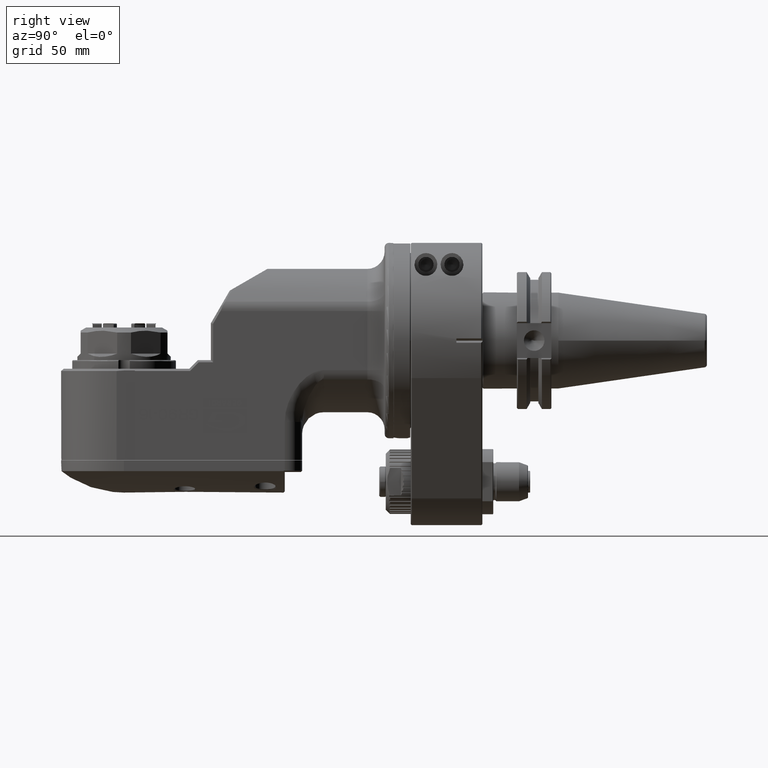
[diagram: clean part render]
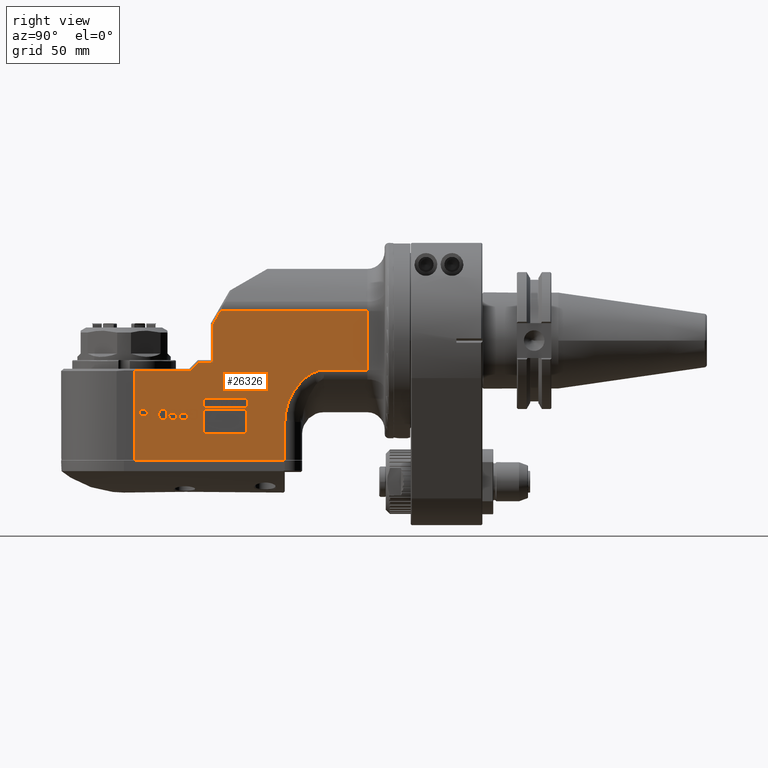
[diagram: same view with one face highlighted and labeled with its STEP entity id]
A machine part, right view. The second image highlights one B-rep face of the part: STEP entity #26326.
In plain terms, the highlighted planar face has unit normal (1, 0, -0).
Its self-contained STEP definition (entity closure, byte-faithful):
#2207=FACE_BOUND('',#4106,.T.);
#2208=FACE_BOUND('',#4107,.T.);
#2209=FACE_BOUND('',#4108,.T.);
#2210=FACE_BOUND('',#4109,.T.);
#2211=FACE_BOUND('',#4110,.T.);
#2212=FACE_BOUND('',#4111,.T.);
#2213=FACE_BOUND('',#4112,.T.);
#2214=FACE_BOUND('',#4113,.T.);
#2215=FACE_BOUND('',#4114,.T.);
#2379=B_SPLINE_CURVE_WITH_KNOTS('',3,(#38294,#38295,#38296,#38297,#38298,
#38299,#38300,#38301,#38302,#38303,#38304,#38305,#38306,#38307,#38308,#38309),
 .UNSPECIFIED.,.F.,.F.,(4,1,1,1,1,1,1,1,1,1,1,1,1,4),(0.,0.07692307692308,
0.1538461538462,0.2307692307692,0.3076923076923,0.3846153846154,0.4615384615385,
0.5384615384615,0.6153846153846,0.6923076923077,0.7692307692308,0.8461538461538,
0.9230769230769,1.),.UNSPECIFIED.);
#2562=FACE_OUTER_BOUND('',#4105,.T.);
#4105=EDGE_LOOP('',(#17254,#17255,#17256,#17257,#17258,#17259,#17260,#17261,
#17262,#17263,#17264,#17265));
#4106=EDGE_LOOP('',(#17266,#17267,#17268,#17269,#17270,#17271,#17272,#17273,
#17274,#17275,#17276,#17277,#17278,#17279,#17280,#17281,#17282,#17283,#17284,
#17285,#17286,#17287,#17288,#17289,#17290,#17291,#17292,#17293,#17294,#17295,
#17296,#17297,#17298,#17299,#17300,#17301,#17302,#17303,#17304,#17305,#17306,
#17307,#17308,#17309));
#4107=EDGE_LOOP('',(#17310,#17311,#17312,#17313,#17314,#17315,#17316,#17317,
#17318,#17319,#17320,#17321,#17322,#17323,#17324,#17325));
#4108=EDGE_LOOP('',(#17326,#17327,#17328,#17329,#17330,#17331,#17332,#17333,
#17334,#17335,#17336,#17337,#17338,#17339,#17340,#17341,#17342,#17343,#17344,
#17345,#17346,#17347,#17348,#17349,#17350,#17351,#17352,#17353,#17354,#17355,
#17356,#17357,#17358,#17359,#17360,#17361,#17362,#17363,#17364,#17365));
#4109=EDGE_LOOP('',(#17366,#17367,#17368,#17369,#17370,#17371,#17372,#17373,
#17374,#17375,#17376,#17377,#17378,#17379,#17380,#17381,#17382,#17383,#17384,
#17385,#17386,#17387,#17388,#17389,#17390,#17391));
#4110=EDGE_LOOP('',(#17392,#17393,#17394,#17395));
#4111=EDGE_LOOP('',(#17396,#17397,#17398,#17399,#17400,#17401,#17402));
#4112=EDGE_LOOP('',(#17403,#17404,#17405,#17406,#17407,#17408,#17409,#17410,
#17411,#17412,#17413,#17414,#17415,#17416,#17417,#17418,#17419,#17420,#17421,
#17422,#17423,#17424,#17425,#17426,#17427,#17428,#17429,#17430,#17431,#17432,
#17433,#17434,#17435,#17436,#17437,#17438,#17439,#17440,#17441,#17442));
#4113=EDGE_LOOP('',(#17443,#17444,#17445,#17446));
#4114=EDGE_LOOP('',(#17447,#17448,#17449,#17450));
#5819=LINE('',#38279,#8160);
#5823=LINE('',#38288,#8164);
#5824=LINE('',#38290,#8165);
#5825=LINE('',#38292,#8166);
#5826=LINE('',#38311,#8167);
#5827=LINE('',#38313,#8168);
#5828=LINE('',#38315,#8169);
#5829=LINE('',#38317,#8170);
#5830=LINE('',#38319,#8171);
#5831=LINE('',#38321,#8172);
#5832=LINE('',#38323,#8173);
#5833=LINE('',#38324,#8174);
#5834=LINE('',#38327,#8175);
#5835=LINE('',#38329,#8176);
#5836=LINE('',#38331,#8177);
#5837=LINE('',#38333,#8178);
#5838=LINE('',#38335,#8179);
#5839=LINE('',#38337,#8180);
#5840=LINE('',#38339,#8181);
#5841=LINE('',#38341,#8182);
#5842=LINE('',#38343,#8183);
#5843=LINE('',#38345,#8184);
#5844=LINE('',#38347,#8185);
#5845=LINE('',#38349,#8186);
#5846=LINE('',#38351,#8187);
#5847=LINE('',#38353,#8188);
#5848=LINE('',#38355,#8189);
#5849=LINE('',#38357,#8190);
#5850=LINE('',#38359,#8191);
#5851=LINE('',#38361,#8192);
#5852=LINE('',#38363,#8193);
#5853=LINE('',#38365,#8194);
#5854=LINE('',#38367,#8195);
#5855=LINE('',#38369,#8196);
#5856=LINE('',#38371,#8197);
#5857=LINE('',#38373,#8198);
#5858=LINE('',#38375,#8199);
#5859=LINE('',#38377,#8200);
#5860=LINE('',#38379,#8201);
#5861=LINE('',#38381,#8202);
#5862=LINE('',#38383,#8203);
#5863=LINE('',#38385,#8204);
#5864=LINE('',#38387,#8205);
#5865=LINE('',#38389,#8206);
#5866=LINE('',#38391,#8207);
#5867=LINE('',#38393,#8208);
#5868=LINE('',#38395,#8209);
#5869=LINE('',#38397,#8210);
#5870=LINE('',#38399,#8211);
#5871=LINE('',#38401,#8212);
#5872=LINE('',#38403,#8213);
#5873=LINE('',#38405,#8214);
#5874=LINE('',#38407,#8215);
#5875=LINE('',#38409,#8216);
#5876=LINE('',#38411,#8217);
#5877=LINE('',#38412,#8218);
#5878=LINE('',#38415,#8219);
#5879=LINE('',#38417,#8220);
#5880=LINE('',#38419,#8221);
#5881=LINE('',#38421,#8222);
#5882=LINE('',#38423,#8223);
#5883=LINE('',#38425,#8224);
#5884=LINE('',#38427,#8225);
#5885=LINE('',#38429,#8226);
#5886=LINE('',#38431,#8227);
#5887=LINE('',#38433,#8228);
#5888=LINE('',#38435,#8229);
#5889=LINE('',#38437,#8230);
#5890=LINE('',#38439,#8231);
#5891=LINE('',#38441,#8232);
#5892=LINE('',#38443,#8233);
#5893=LINE('',#38444,#8234);
#5894=LINE('',#38447,#8235);
#5895=LINE('',#38449,#8236);
#5896=LINE('',#38451,#8237);
#5897=LINE('',#38453,#8238);
#5898=LINE('',#38455,#8239);
#5899=LINE('',#38457,#8240);
#5900=LINE('',#38459,#8241);
#5901=LINE('',#38461,#8242);
#5902=LINE('',#38463,#8243);
#5903=LINE('',#38465,#8244);
#5904=LINE('',#38467,#8245);
#5905=LINE('',#38469,#8246);
#5906=LINE('',#38471,#8247);
#5907=LINE('',#38473,#8248);
#5908=LINE('',#38475,#8249);
#5909=LINE('',#38477,#8250);
#5910=LINE('',#38479,#8251);
#5911=LINE('',#38481,#8252);
#5912=LINE('',#38483,#8253);
#5913=LINE('',#38485,#8254);
#5914=LINE('',#38487,#8255);
#5915=LINE('',#38489,#8256);
#5916=LINE('',#38491,#8257);
#5917=LINE('',#38493,#8258);
#5918=LINE('',#38495,#8259);
#5919=LINE('',#38497,#8260);
#5920=LINE('',#38499,#8261);
#5921=LINE('',#38501,#8262);
#5922=LINE('',#38503,#8263);
#5923=LINE('',#38505,#8264);
#5924=LINE('',#38507,#8265);
#5925=LINE('',#38509,#8266);
#5926=LINE('',#38511,#8267);
#5927=LINE('',#38513,#8268);
#5928=LINE('',#38515,#8269);
#5929=LINE('',#38517,#8270);
#5930=LINE('',#38519,#8271);
#5931=LINE('',#38521,#8272);
#5932=LINE('',#38523,#8273);
#5933=LINE('',#38524,#8274);
#5934=LINE('',#38527,#8275);
#5935=LINE('',#38529,#8276);
#5936=LINE('',#38531,#8277);
#5937=LINE('',#38533,#8278);
#5938=LINE('',#38535,#8279);
#5939=LINE('',#38537,#8280);
#5940=LINE('',#38539,#8281);
#5941=LINE('',#38541,#8282);
#5942=LINE('',#38543,#8283);
#5943=LINE('',#38545,#8284);
#5944=LINE('',#38547,#8285);
#5945=LINE('',#38549,#8286);
#5946=LINE('',#38551,#8287);
#5947=LINE('',#38553,#8288);
#5948=LINE('',#38555,#8289);
#5949=LINE('',#38557,#8290);
#5950=LINE('',#38559,#8291);
#5951=LINE('',#38561,#8292);
#5952=LINE('',#38563,#8293);
#5953=LINE('',#38565,#8294);
#5954=LINE('',#38567,#8295);
#5955=LINE('',#38569,#8296);
#5956=LINE('',#38571,#8297);
#5957=LINE('',#38573,#8298);
#5958=LINE('',#38575,#8299);
#5959=LINE('',#38576,#8300);
#5960=LINE('',#38579,#8301);
#5961=LINE('',#38581,#8302);
#5962=LINE('',#38583,#8303);
#5963=LINE('',#38584,#8304);
#5964=LINE('',#38587,#8305);
#5965=LINE('',#38589,#8306);
#5966=LINE('',#38591,#8307);
#5967=LINE('',#38593,#8308);
#5968=LINE('',#38595,#8309);
#5969=LINE('',#38597,#8310);
#5970=LINE('',#38598,#8311);
#5971=LINE('',#38601,#8312);
#5972=LINE('',#38603,#8313);
#5973=LINE('',#38605,#8314);
#5974=LINE('',#38607,#8315);
#5975=LINE('',#38609,#8316);
#5976=LINE('',#38611,#8317);
#5977=LINE('',#38613,#8318);
#5978=LINE('',#38615,#8319);
#5979=LINE('',#38617,#8320);
#5980=LINE('',#38619,#8321);
#5981=LINE('',#38621,#8322);
#5982=LINE('',#38623,#8323);
#5983=LINE('',#38625,#8324);
#5984=LINE('',#38627,#8325);
#5985=LINE('',#38629,#8326);
#5986=LINE('',#38631,#8327);
#5987=LINE('',#38633,#8328);
#5988=LINE('',#38635,#8329);
#5989=LINE('',#38637,#8330);
#5990=LINE('',#38639,#8331);
#5991=LINE('',#38641,#8332);
#5992=LINE('',#38643,#8333);
#5993=LINE('',#38645,#8334);
#5994=LINE('',#38647,#8335);
#5995=LINE('',#38649,#8336);
#5996=LINE('',#38651,#8337);
#5997=LINE('',#38653,#8338);
#5998=LINE('',#38655,#8339);
#5999=LINE('',#38656,#8340);
#6000=LINE('',#38658,#8341);
#6001=LINE('',#38660,#8342);
#6002=LINE('',#38662,#8343);
#6003=LINE('',#38664,#8344);
#6004=LINE('',#38666,#8345);
#6005=LINE('',#38668,#8346);
#6006=LINE('',#38670,#8347);
#6007=LINE('',#38672,#8348);
#6008=LINE('',#38674,#8349);
#6009=LINE('',#38675,#8350);
#6010=LINE('',#38678,#8351);
#6011=LINE('',#38680,#8352);
#6012=LINE('',#38682,#8353);
#6013=LINE('',#38683,#8354);
#6014=LINE('',#38686,#8355);
#6015=LINE('',#38688,#8356);
#6016=LINE('',#38690,#8357);
#6017=LINE('',#38691,#8358);
#8160=VECTOR('',#30599,0.330111474298106);
#8164=VECTOR('',#30605,41.);
#8165=VECTOR('',#30606,69.00000000004);
#8166=VECTOR('',#30607,17.47667432528);
#8167=VECTOR('',#30608,20.00000000068);
#8168=VECTOR('',#30609,27.12931993246);
#8169=VECTOR('',#30610,67.63254153218);
#8170=VECTOR('',#30611,6.73491693564077);
#8171=VECTOR('',#30612,17.73205080759);
#8172=VECTOR('',#30613,6.5857864376);
#8173=VECTOR('',#30614,5.65685424947602);
#8174=VECTOR('',#30615,25.41421356242);
#8175=VECTOR('',#30616,0.438095999171006);
#8176=VECTOR('',#30617,0.595557449692804);
#8177=VECTOR('',#30618,0.467846536858501);
#8178=VECTOR('',#30619,0.531587059723589);
#8179=VECTOR('',#30620,0.9374998509704);
#8180=VECTOR('',#30621,0.531586986681914);
#8181=VECTOR('',#30622,0.467846669654301);
#8182=VECTOR('',#30623,0.59555729308241);
#8183=VECTOR('',#30624,0.473793422798119);
#8184=VECTOR('',#30625,0.542018525149217);
#8185=VECTOR('',#30626,1.595744639557);
#8186=VECTOR('',#30627,0.542018817807102);
#8187=VECTOR('',#30628,0.473793355672317);
#8188=VECTOR('',#30629,0.595557266581999);
#8189=VECTOR('',#30630,0.467846656949498);
#8190=VECTOR('',#30631,0.531586984763295);
#8191=VECTOR('',#30632,0.9374998510165);
#8192=VECTOR('',#30633,0.531587057855907);
#8193=VECTOR('',#30634,0.46784652420999);
#8194=VECTOR('',#30635,0.595557422960908);
#8195=VECTOR('',#30636,0.542018798015912);
#8196=VECTOR('',#30637,0.6249999999871);
#8197=VECTOR('',#30638,0.33571845815431);
#8198=VECTOR('',#30639,0.378055011673508);
#8199=VECTOR('',#30640,0.43003326870209);
#8200=VECTOR('',#30641,0.937499850989);
#8201=VECTOR('',#30642,0.430033124214184);
#8202=VECTOR('',#30643,0.378055011765693);
#8203=VECTOR('',#30644,0.381128583869517);
#8204=VECTOR('',#30645,0.43809594468161);
#8205=VECTOR('',#30646,1.595744639703);
#8206=VECTOR('',#30647,0.438095944510004);
#8207=VECTOR('',#30648,0.381128334463205);
#8208=VECTOR('',#30649,0.378055053617906);
#8209=VECTOR('',#30650,0.430033124233609);
#8210=VECTOR('',#30651,0.9374998509914);
#8211=VECTOR('',#30652,0.430033268707209);
#8212=VECTOR('',#30653,0.378055053591706);
#8213=VECTOR('',#30654,0.335718174840081);
#8214=VECTOR('',#30655,0.85106387734);
#8215=VECTOR('',#30656,0.9375);
#8216=VECTOR('',#30657,0.63829779625);
#8217=VECTOR('',#30658,1.562499999998);
#8218=VECTOR('',#30659,1.595744639692);
#8219=VECTOR('',#30660,1.7708337306);
#8220=VECTOR('',#30661,2.2340425849);
#8221=VECTOR('',#30662,0.624999702);
#8222=VECTOR('',#30663,4.999999999999);
#8223=VECTOR('',#30664,2.499999702014);
#8224=VECTOR('',#30665,0.531587349781517);
#8225=VECTOR('',#30666,0.524849310940218);
#8226=VECTOR('',#30667,0.527952286974813);
#8227=VECTOR('',#30668,0.335718267367996);
#8228=VECTOR('',#30669,0.4255321622606);
#8229=VECTOR('',#30670,0.335718267224292);
#8230=VECTOR('',#30671,0.527952287049793);
#8231=VECTOR('',#30672,0.467846258857701);
#8232=VECTOR('',#30673,2.62026299610705);
#8233=VECTOR('',#30674,0.7291668653205);
#8234=VECTOR('',#30675,2.38440566694406);
#8235=VECTOR('',#30676,0.335718338231294);
#8236=VECTOR('',#30677,0.5208331346006);
#8237=VECTOR('',#30678,0.381128600442015);
#8238=VECTOR('',#30679,0.378055011687297);
#8239=VECTOR('',#30680,0.3301114742983);
#8240=VECTOR('',#30681,0.624999999991);
#8241=VECTOR('',#30682,0.330111474307893);
#8242=VECTOR('',#30683,0.378055011677805);
#8243=VECTOR('',#30684,0.381128600445587);
#8244=VECTOR('',#30685,0.335718082367898);
#8245=VECTOR('',#30686,0.646741740252508);
#8246=VECTOR('',#30687,0.2127659320893);
#8247=VECTOR('',#30688,0.756110023357075);
#8248=VECTOR('',#30689,0.531586211663918);
#8249=VECTOR('',#30690,0.5208337307103);
#8250=VECTOR('',#30691,0.531587379623374);
#8251=VECTOR('',#30692,0.610837582680531);
#8252=VECTOR('',#30693,0.527952639940501);
#8253=VECTOR('',#30694,0.571258331704419);
#8254=VECTOR('',#30695,0.42553186411);
#8255=VECTOR('',#30696,0.571258609356798);
#8256=VECTOR('',#30697,0.527952639810098);
#8257=VECTOR('',#30698,0.610837582697691);
#8258=VECTOR('',#30699,0.531587349829903);
#8259=VECTOR('',#30700,0.5208337307032);
#8260=VECTOR('',#30701,0.531586181837999);
#8261=VECTOR('',#30702,0.610838599155208);
#8262=VECTOR('',#30703,0.527952287065905);
#8263=VECTOR('',#30704,0.571258826611718);
#8264=VECTOR('',#30705,0.751930880723099);
#8265=VECTOR('',#30706,0.7446807623029);
#8266=VECTOR('',#30707,0.75193102828582);
#8267=VECTOR('',#30708,0.5712586184978);
#8268=VECTOR('',#30709,0.527952317100296);
#8269=VECTOR('',#30710,0.610838613743397);
#8270=VECTOR('',#30711,0.531586183707524);
#8271=VECTOR('',#30712,0.4166674614082);
#8272=VECTOR('',#30713,0.531586183691279);
#8273=VECTOR('',#30714,0.610838613815103);
#8274=VECTOR('',#30715,0.527952316935992);
#8275=VECTOR('',#30716,0.9574466943831);
#8276=VECTOR('',#30717,0.542018448257714);
#8277=VECTOR('',#30718,0.335718365687814);
#8278=VECTOR('',#30719,0.473793531789193);
#8279=VECTOR('',#30720,0.44666796300758);
#8280=VECTOR('',#30721,0.610838599145986);
#8281=VECTOR('',#30722,0.633989223465106);
#8282=VECTOR('',#30723,0.633989223450873);
#8283=VECTOR('',#30724,0.61083758270973);
#8284=VECTOR('',#30725,0.446667963018425);
#8285=VECTOR('',#30726,0.473793531671401);
#8286=VECTOR('',#30727,0.33571836586849);
#8287=VECTOR('',#30728,0.54201867728517);
#8288=VECTOR('',#30729,0.9574466943657);
#8289=VECTOR('',#30730,0.542018823604395);
#8290=VECTOR('',#30731,0.335718082380986);
#8291=VECTOR('',#30732,0.473793598708401);
#8292=VECTOR('',#30733,0.446667989621901);
#8293=VECTOR('',#30734,0.61083759729279);
#8294=VECTOR('',#30735,0.6339892250307);
#8295=VECTOR('',#30736,0.633989225016767);
#8296=VECTOR('',#30737,0.610838613746568);
#8297=VECTOR('',#30738,0.446667989624098);
#8298=VECTOR('',#30739,0.473793598741181);
#8299=VECTOR('',#30740,0.335718082304907);
#8300=VECTOR('',#30741,0.54201859452921);
#8301=VECTOR('',#30742,1.4583337307);
#8302=VECTOR('',#30743,0.53191497922);
#8303=VECTOR('',#30744,1.4583337307);
#8304=VECTOR('',#30745,0.53191497922);
#8305=VECTOR('',#30746,0.6250000000003);
#8306=VECTOR('',#30747,4.148936271668);
#8307=VECTOR('',#30748,0.972201049988134);
#8308=VECTOR('',#30749,0.8510640263598);
#8309=VECTOR('',#30750,0.972200821705604);
#8310=VECTOR('',#30751,0.625);
#8311=VECTOR('',#30752,5.);
#8312=VECTOR('',#30753,0.44666796300749);
#8313=VECTOR('',#30754,0.571258983871208);
#8314=VECTOR('',#30755,0.5319149792043);
#8315=VECTOR('',#30756,0.571259053259125);
#8316=VECTOR('',#30757,0.527952317096572);
#8317=VECTOR('',#30758,0.610837597293798);
#8318=VECTOR('',#30759,0.531586183707524);
#8319=VECTOR('',#30760,0.5208349228108);
#8320=VECTOR('',#30761,0.531586183694685);
#8321=VECTOR('',#30762,0.610837597290408);
#8322=VECTOR('',#30763,0.527952317156693);
#8323=VECTOR('',#30764,0.57125905316242);
#8324=VECTOR('',#30765,0.75193086317928);
#8325=VECTOR('',#30766,0.7446807623412);
#8326=VECTOR('',#30767,0.751930715528081);
#8327=VECTOR('',#30768,0.571259261383805);
#8328=VECTOR('',#30769,0.5279522870672);
#8329=VECTOR('',#30770,0.610837582699098);
#8330=VECTOR('',#30771,0.531586181844514);
#8331=VECTOR('',#30772,0.4166674614006);
#8332=VECTOR('',#30773,0.531586181842971);
#8333=VECTOR('',#30774,0.610839615616392);
#8334=VECTOR('',#30775,0.527952287017511);
#8335=VECTOR('',#30776,0.3357177125305);
#8336=VECTOR('',#30777,0.5208325385962);
#8337=VECTOR('',#30778,0.381127886433305);
#8338=VECTOR('',#30779,0.378055011676176);
#8339=VECTOR('',#30780,0.330111474298993);
#8340=VECTOR('',#30781,0.6250000000003);
#8341=VECTOR('',#30782,0.378055011693003);
#8342=VECTOR('',#30783,0.381129189634217);
#8343=VECTOR('',#30784,0.335717995889507);
#8344=VECTOR('',#30785,0.646741785145327);
#8345=VECTOR('',#30786,0.2127659320895);
#8346=VECTOR('',#30787,0.756110023358202);
#8347=VECTOR('',#30788,0.531586181844414);
#8348=VECTOR('',#30789,0.5208349228057);
#8349=VECTOR('',#30790,0.531586181833206);
#8350=VECTOR('',#30791,0.61083758270593);
#8351=VECTOR('',#30792,11.01317900752);
#8352=VECTOR('',#30793,20.0110928159);
#8353=VECTOR('',#30794,11.01317900752);
#8354=VECTOR('',#30795,20.0110928159);
#8355=VECTOR('',#30796,4.2328022012);
#8356=VECTOR('',#30797,20.0290582718);
#8357=VECTOR('',#30798,4.2328022012);
#8358=VECTOR('',#30799,20.0290582718);
#10501=VERTEX_POINT('',#38277);
#10502=VERTEX_POINT('',#38278);
#10505=VERTEX_POINT('',#38286);
#10506=VERTEX_POINT('',#38287);
#10507=VERTEX_POINT('',#38289);
#10508=VERTEX_POINT('',#38291);
#10509=VERTEX_POINT('',#38293);
#10510=VERTEX_POINT('',#38310);
#10511=VERTEX_POINT('',#38312);
#10512=VERTEX_POINT('',#38314);
#10513=VERTEX_POINT('',#38316);
#10514=VERTEX_POINT('',#38318);
#10515=VERTEX_POINT('',#38320);
#10516=VERTEX_POINT('',#38322);
#10517=VERTEX_POINT('',#38325);
#10518=VERTEX_POINT('',#38326);
#10519=VERTEX_POINT('',#38328);
#10520=VERTEX_POINT('',#38330);
#10521=VERTEX_POINT('',#38332);
#10522=VERTEX_POINT('',#38334);
#10523=VERTEX_POINT('',#38336);
#10524=VERTEX_POINT('',#38338);
#10525=VERTEX_POINT('',#38340);
#10526=VERTEX_POINT('',#38342);
#10527=VERTEX_POINT('',#38344);
#10528=VERTEX_POINT('',#38346);
#10529=VERTEX_POINT('',#38348);
#10530=VERTEX_POINT('',#38350);
#10531=VERTEX_POINT('',#38352);
#10532=VERTEX_POINT('',#38354);
#10533=VERTEX_POINT('',#38356);
#10534=VERTEX_POINT('',#38358);
#10535=VERTEX_POINT('',#38360);
#10536=VERTEX_POINT('',#38362);
#10537=VERTEX_POINT('',#38364);
#10538=VERTEX_POINT('',#38366);
#10539=VERTEX_POINT('',#38368);
#10540=VERTEX_POINT('',#38370);
#10541=VERTEX_POINT('',#38372);
#10542=VERTEX_POINT('',#38374);
#10543=VERTEX_POINT('',#38376);
#10544=VERTEX_POINT('',#38378);
#10545=VERTEX_POINT('',#38380);
#10546=VERTEX_POINT('',#38382);
#10547=VERTEX_POINT('',#38384);
#10548=VERTEX_POINT('',#38386);
#10549=VERTEX_POINT('',#38388);
#10550=VERTEX_POINT('',#38390);
#10551=VERTEX_POINT('',#38392);
#10552=VERTEX_POINT('',#38394);
#10553=VERTEX_POINT('',#38396);
#10554=VERTEX_POINT('',#38398);
#10555=VERTEX_POINT('',#38400);
#10556=VERTEX_POINT('',#38402);
#10557=VERTEX_POINT('',#38404);
#10558=VERTEX_POINT('',#38406);
#10559=VERTEX_POINT('',#38408);
#10560=VERTEX_POINT('',#38410);
#10561=VERTEX_POINT('',#38413);
#10562=VERTEX_POINT('',#38414);
#10563=VERTEX_POINT('',#38416);
#10564=VERTEX_POINT('',#38418);
#10565=VERTEX_POINT('',#38420);
#10566=VERTEX_POINT('',#38422);
#10567=VERTEX_POINT('',#38424);
#10568=VERTEX_POINT('',#38426);
#10569=VERTEX_POINT('',#38428);
#10570=VERTEX_POINT('',#38430);
#10571=VERTEX_POINT('',#38432);
#10572=VERTEX_POINT('',#38434);
#10573=VERTEX_POINT('',#38436);
#10574=VERTEX_POINT('',#38438);
#10575=VERTEX_POINT('',#38440);
#10576=VERTEX_POINT('',#38442);
#10577=VERTEX_POINT('',#38445);
#10578=VERTEX_POINT('',#38446);
#10579=VERTEX_POINT('',#38448);
#10580=VERTEX_POINT('',#38450);
#10581=VERTEX_POINT('',#38452);
#10582=VERTEX_POINT('',#38454);
#10583=VERTEX_POINT('',#38456);
#10584=VERTEX_POINT('',#38458);
#10585=VERTEX_POINT('',#38460);
#10586=VERTEX_POINT('',#38462);
#10587=VERTEX_POINT('',#38464);
#10588=VERTEX_POINT('',#38466);
#10589=VERTEX_POINT('',#38468);
#10590=VERTEX_POINT('',#38470);
#10591=VERTEX_POINT('',#38472);
#10592=VERTEX_POINT('',#38474);
#10593=VERTEX_POINT('',#38476);
#10594=VERTEX_POINT('',#38478);
#10595=VERTEX_POINT('',#38480);
#10596=VERTEX_POINT('',#38482);
#10597=VERTEX_POINT('',#38484);
#10598=VERTEX_POINT('',#38486);
#10599=VERTEX_POINT('',#38488);
#10600=VERTEX_POINT('',#38490);
#10601=VERTEX_POINT('',#38492);
#10602=VERTEX_POINT('',#38494);
#10603=VERTEX_POINT('',#38496);
#10604=VERTEX_POINT('',#38498);
#10605=VERTEX_POINT('',#38500);
#10606=VERTEX_POINT('',#38502);
#10607=VERTEX_POINT('',#38504);
#10608=VERTEX_POINT('',#38506);
#10609=VERTEX_POINT('',#38508);
#10610=VERTEX_POINT('',#38510);
#10611=VERTEX_POINT('',#38512);
#10612=VERTEX_POINT('',#38514);
#10613=VERTEX_POINT('',#38516);
#10614=VERTEX_POINT('',#38518);
#10615=VERTEX_POINT('',#38520);
#10616=VERTEX_POINT('',#38522);
#10617=VERTEX_POINT('',#38525);
#10618=VERTEX_POINT('',#38526);
#10619=VERTEX_POINT('',#38528);
#10620=VERTEX_POINT('',#38530);
#10621=VERTEX_POINT('',#38532);
#10622=VERTEX_POINT('',#38534);
#10623=VERTEX_POINT('',#38536);
#10624=VERTEX_POINT('',#38538);
#10625=VERTEX_POINT('',#38540);
#10626=VERTEX_POINT('',#38542);
#10627=VERTEX_POINT('',#38544);
#10628=VERTEX_POINT('',#38546);
#10629=VERTEX_POINT('',#38548);
#10630=VERTEX_POINT('',#38550);
#10631=VERTEX_POINT('',#38552);
#10632=VERTEX_POINT('',#38554);
#10633=VERTEX_POINT('',#38556);
#10634=VERTEX_POINT('',#38558);
#10635=VERTEX_POINT('',#38560);
#10636=VERTEX_POINT('',#38562);
#10637=VERTEX_POINT('',#38564);
#10638=VERTEX_POINT('',#38566);
#10639=VERTEX_POINT('',#38568);
#10640=VERTEX_POINT('',#38570);
#10641=VERTEX_POINT('',#38572);
#10642=VERTEX_POINT('',#38574);
#10643=VERTEX_POINT('',#38577);
#10644=VERTEX_POINT('',#38578);
#10645=VERTEX_POINT('',#38580);
#10646=VERTEX_POINT('',#38582);
#10647=VERTEX_POINT('',#38585);
#10648=VERTEX_POINT('',#38586);
#10649=VERTEX_POINT('',#38588);
#10650=VERTEX_POINT('',#38590);
#10651=VERTEX_POINT('',#38592);
#10652=VERTEX_POINT('',#38594);
#10653=VERTEX_POINT('',#38596);
#10654=VERTEX_POINT('',#38599);
#10655=VERTEX_POINT('',#38600);
#10656=VERTEX_POINT('',#38602);
#10657=VERTEX_POINT('',#38604);
#10658=VERTEX_POINT('',#38606);
#10659=VERTEX_POINT('',#38608);
#10660=VERTEX_POINT('',#38610);
#10661=VERTEX_POINT('',#38612);
#10662=VERTEX_POINT('',#38614);
#10663=VERTEX_POINT('',#38616);
#10664=VERTEX_POINT('',#38618);
#10665=VERTEX_POINT('',#38620);
#10666=VERTEX_POINT('',#38622);
#10667=VERTEX_POINT('',#38624);
#10668=VERTEX_POINT('',#38626);
#10669=VERTEX_POINT('',#38628);
#10670=VERTEX_POINT('',#38630);
#10671=VERTEX_POINT('',#38632);
#10672=VERTEX_POINT('',#38634);
#10673=VERTEX_POINT('',#38636);
#10674=VERTEX_POINT('',#38638);
#10675=VERTEX_POINT('',#38640);
#10676=VERTEX_POINT('',#38642);
#10677=VERTEX_POINT('',#38644);
#10678=VERTEX_POINT('',#38646);
#10679=VERTEX_POINT('',#38648);
#10680=VERTEX_POINT('',#38650);
#10681=VERTEX_POINT('',#38652);
#10682=VERTEX_POINT('',#38654);
#10683=VERTEX_POINT('',#38657);
#10684=VERTEX_POINT('',#38659);
#10685=VERTEX_POINT('',#38661);
#10686=VERTEX_POINT('',#38663);
#10687=VERTEX_POINT('',#38665);
#10688=VERTEX_POINT('',#38667);
#10689=VERTEX_POINT('',#38669);
#10690=VERTEX_POINT('',#38671);
#10691=VERTEX_POINT('',#38673);
#10692=VERTEX_POINT('',#38676);
#10693=VERTEX_POINT('',#38677);
#10694=VERTEX_POINT('',#38679);
#10695=VERTEX_POINT('',#38681);
#10696=VERTEX_POINT('',#38684);
#10697=VERTEX_POINT('',#38685);
#10698=VERTEX_POINT('',#38687);
#10699=VERTEX_POINT('',#38689);
#13174=EDGE_CURVE('',#10501,#10502,#5819,.T.);
#13178=EDGE_CURVE('',#10505,#10506,#5823,.T.);
#13179=EDGE_CURVE('',#10506,#10507,#5824,.T.);
#13180=EDGE_CURVE('',#10507,#10508,#5825,.T.);
#13181=EDGE_CURVE('',#10509,#10508,#2379,.T.);
#13182=EDGE_CURVE('',#10509,#10510,#5826,.T.);
#13183=EDGE_CURVE('',#10510,#10511,#5827,.T.);
#13184=EDGE_CURVE('',#10511,#10512,#5828,.T.);
#13185=EDGE_CURVE('',#10513,#10512,#5829,.T.);
#13186=EDGE_CURVE('',#10513,#10514,#5830,.T.);
#13187=EDGE_CURVE('',#10515,#10514,#5831,.T.);
#13188=EDGE_CURVE('',#10516,#10515,#5832,.T.);
#13189=EDGE_CURVE('',#10516,#10505,#5833,.T.);
#13190=EDGE_CURVE('',#10517,#10518,#5834,.T.);
#13191=EDGE_CURVE('',#10519,#10517,#5835,.T.);
#13192=EDGE_CURVE('',#10520,#10519,#5836,.T.);
#13193=EDGE_CURVE('',#10521,#10520,#5837,.T.);
#13194=EDGE_CURVE('',#10521,#10522,#5838,.T.);
#13195=EDGE_CURVE('',#10523,#10522,#5839,.T.);
#13196=EDGE_CURVE('',#10524,#10523,#5840,.T.);
#13197=EDGE_CURVE('',#10525,#10524,#5841,.T.);
#13198=EDGE_CURVE('',#10526,#10525,#5842,.T.);
#13199=EDGE_CURVE('',#10527,#10526,#5843,.T.);
#13200=EDGE_CURVE('',#10527,#10528,#5844,.T.);
#13201=EDGE_CURVE('',#10529,#10528,#5845,.T.);
#13202=EDGE_CURVE('',#10530,#10529,#5846,.T.);
#13203=EDGE_CURVE('',#10531,#10530,#5847,.T.);
#13204=EDGE_CURVE('',#10532,#10531,#5848,.T.);
#13205=EDGE_CURVE('',#10533,#10532,#5849,.T.);
#13206=EDGE_CURVE('',#10533,#10534,#5850,.T.);
#13207=EDGE_CURVE('',#10535,#10534,#5851,.T.);
#13208=EDGE_CURVE('',#10536,#10535,#5852,.T.);
#13209=EDGE_CURVE('',#10537,#10536,#5853,.T.);
#13210=EDGE_CURVE('',#10538,#10537,#5854,.T.);
#13211=EDGE_CURVE('',#10538,#10539,#5855,.T.);
#13212=EDGE_CURVE('',#10540,#10539,#5856,.T.);
#13213=EDGE_CURVE('',#10541,#10540,#5857,.T.);
#13214=EDGE_CURVE('',#10542,#10541,#5858,.T.);
#13215=EDGE_CURVE('',#10542,#10543,#5859,.T.);
#13216=EDGE_CURVE('',#10544,#10543,#5860,.T.);
#13217=EDGE_CURVE('',#10545,#10544,#5861,.T.);
#13218=EDGE_CURVE('',#10546,#10545,#5862,.T.);
#13219=EDGE_CURVE('',#10547,#10546,#5863,.T.);
#13220=EDGE_CURVE('',#10547,#10548,#5864,.T.);
#13221=EDGE_CURVE('',#10549,#10548,#5865,.T.);
#13222=EDGE_CURVE('',#10550,#10549,#5866,.T.);
#13223=EDGE_CURVE('',#10551,#10550,#5867,.T.);
#13224=EDGE_CURVE('',#10552,#10551,#5868,.T.);
#13225=EDGE_CURVE('',#10552,#10553,#5869,.T.);
#13226=EDGE_CURVE('',#10554,#10553,#5870,.T.);
#13227=EDGE_CURVE('',#10555,#10554,#5871,.T.);
#13228=EDGE_CURVE('',#10556,#10555,#5872,.T.);
#13229=EDGE_CURVE('',#10556,#10557,#5873,.T.);
#13230=EDGE_CURVE('',#10557,#10558,#5874,.T.);
#13231=EDGE_CURVE('',#10558,#10559,#5875,.T.);
#13232=EDGE_CURVE('',#10559,#10560,#5876,.T.);
#13233=EDGE_CURVE('',#10560,#10518,#5877,.T.);
#13234=EDGE_CURVE('',#10561,#10562,#5878,.T.);
#13235=EDGE_CURVE('',#10562,#10563,#5879,.T.);
#13236=EDGE_CURVE('',#10563,#10564,#5880,.T.);
#13237=EDGE_CURVE('',#10564,#10565,#5881,.T.);
#13238=EDGE_CURVE('',#10565,#10566,#5882,.T.);
#13239=EDGE_CURVE('',#10567,#10566,#5883,.T.);
#13240=EDGE_CURVE('',#10568,#10567,#5884,.T.);
#13241=EDGE_CURVE('',#10569,#10568,#5885,.T.);
#13242=EDGE_CURVE('',#10570,#10569,#5886,.T.);
#13243=EDGE_CURVE('',#10570,#10571,#5887,.T.);
#13244=EDGE_CURVE('',#10572,#10571,#5888,.T.);
#13245=EDGE_CURVE('',#10573,#10572,#5889,.T.);
#13246=EDGE_CURVE('',#10574,#10573,#5890,.T.);
#13247=EDGE_CURVE('',#10575,#10574,#5891,.T.);
#13248=EDGE_CURVE('',#10575,#10576,#5892,.T.);
#13249=EDGE_CURVE('',#10561,#10576,#5893,.T.);
#13250=EDGE_CURVE('',#10577,#10578,#5894,.T.);
#13251=EDGE_CURVE('',#10577,#10579,#5895,.T.);
#13252=EDGE_CURVE('',#10580,#10579,#5896,.T.);
#13253=EDGE_CURVE('',#10581,#10580,#5897,.T.);
#13254=EDGE_CURVE('',#10582,#10581,#5898,.T.);
#13255=EDGE_CURVE('',#10582,#10583,#5899,.T.);
#13256=EDGE_CURVE('',#10584,#10583,#5900,.T.);
#13257=EDGE_CURVE('',#10585,#10584,#5901,.T.);
#13258=EDGE_CURVE('',#10586,#10585,#5902,.T.);
#13259=EDGE_CURVE('',#10587,#10586,#5903,.T.);
#13260=EDGE_CURVE('',#10588,#10587,#5904,.T.);
#13261=EDGE_CURVE('',#10588,#10589,#5905,.T.);
#13262=EDGE_CURVE('',#10590,#10589,#5906,.T.);
#13263=EDGE_CURVE('',#10591,#10590,#5907,.T.);
#13264=EDGE_CURVE('',#10591,#10592,#5908,.T.);
#13265=EDGE_CURVE('',#10593,#10592,#5909,.T.);
#13266=EDGE_CURVE('',#10594,#10593,#5910,.T.);
#13267=EDGE_CURVE('',#10595,#10594,#5911,.T.);
#13268=EDGE_CURVE('',#10596,#10595,#5912,.T.);
#13269=EDGE_CURVE('',#10596,#10597,#5913,.T.);
#13270=EDGE_CURVE('',#10598,#10597,#5914,.T.);
#13271=EDGE_CURVE('',#10599,#10598,#5915,.T.);
#13272=EDGE_CURVE('',#10600,#10599,#5916,.T.);
#13273=EDGE_CURVE('',#10601,#10600,#5917,.T.);
#13274=EDGE_CURVE('',#10601,#10602,#5918,.T.);
#13275=EDGE_CURVE('',#10603,#10602,#5919,.T.);
#13276=EDGE_CURVE('',#10604,#10603,#5920,.T.);
#13277=EDGE_CURVE('',#10605,#10604,#5921,.T.);
#13278=EDGE_CURVE('',#10606,#10605,#5922,.T.);
#13279=EDGE_CURVE('',#10607,#10606,#5923,.T.);
#13280=EDGE_CURVE('',#10607,#10608,#5924,.T.);
#13281=EDGE_CURVE('',#10609,#10608,#5925,.T.);
#13282=EDGE_CURVE('',#10610,#10609,#5926,.T.);
#13283=EDGE_CURVE('',#10611,#10610,#5927,.T.);
#13284=EDGE_CURVE('',#10612,#10611,#5928,.T.);
#13285=EDGE_CURVE('',#10613,#10612,#5929,.T.);
#13286=EDGE_CURVE('',#10613,#10614,#5930,.T.);
#13287=EDGE_CURVE('',#10615,#10614,#5931,.T.);
#13288=EDGE_CURVE('',#10616,#10615,#5932,.T.);
#13289=EDGE_CURVE('',#10578,#10616,#5933,.T.);
#13290=EDGE_CURVE('',#10617,#10618,#5934,.T.);
#13291=EDGE_CURVE('',#10619,#10618,#5935,.T.);
#13292=EDGE_CURVE('',#10620,#10619,#5936,.T.);
#13293=EDGE_CURVE('',#10621,#10620,#5937,.T.);
#13294=EDGE_CURVE('',#10622,#10621,#5938,.T.);
#13295=EDGE_CURVE('',#10623,#10622,#5939,.T.);
#13296=EDGE_CURVE('',#10624,#10623,#5940,.T.);
#13297=EDGE_CURVE('',#10625,#10624,#5941,.T.);
#13298=EDGE_CURVE('',#10626,#10625,#5942,.T.);
#13299=EDGE_CURVE('',#10627,#10626,#5943,.T.);
#13300=EDGE_CURVE('',#10628,#10627,#5944,.T.);
#13301=EDGE_CURVE('',#10629,#10628,#5945,.T.);
#13302=EDGE_CURVE('',#10630,#10629,#5946,.T.);
#13303=EDGE_CURVE('',#10630,#10631,#5947,.T.);
#13304=EDGE_CURVE('',#10632,#10631,#5948,.T.);
#13305=EDGE_CURVE('',#10633,#10632,#5949,.T.);
#13306=EDGE_CURVE('',#10634,#10633,#5950,.T.);
#13307=EDGE_CURVE('',#10635,#10634,#5951,.T.);
#13308=EDGE_CURVE('',#10636,#10635,#5952,.T.);
#13309=EDGE_CURVE('',#10637,#10636,#5953,.T.);
#13310=EDGE_CURVE('',#10638,#10637,#5954,.T.);
#13311=EDGE_CURVE('',#10639,#10638,#5955,.T.);
#13312=EDGE_CURVE('',#10640,#10639,#5956,.T.);
#13313=EDGE_CURVE('',#10641,#10640,#5957,.T.);
#13314=EDGE_CURVE('',#10642,#10641,#5958,.T.);
#13315=EDGE_CURVE('',#10617,#10642,#5959,.T.);
#13316=EDGE_CURVE('',#10643,#10644,#5960,.T.);
#13317=EDGE_CURVE('',#10644,#10645,#5961,.T.);
#13318=EDGE_CURVE('',#10645,#10646,#5962,.T.);
#13319=EDGE_CURVE('',#10646,#10643,#5963,.T.);
#13320=EDGE_CURVE('',#10647,#10648,#5964,.T.);
#13321=EDGE_CURVE('',#10648,#10649,#5965,.T.);
#13322=EDGE_CURVE('',#10650,#10649,#5966,.T.);
#13323=EDGE_CURVE('',#10650,#10651,#5967,.T.);
#13324=EDGE_CURVE('',#10652,#10651,#5968,.T.);
#13325=EDGE_CURVE('',#10652,#10653,#5969,.T.);
#13326=EDGE_CURVE('',#10653,#10647,#5970,.T.);
#13327=EDGE_CURVE('',#10654,#10655,#5971,.T.);
#13328=EDGE_CURVE('',#10656,#10654,#5972,.T.);
#13329=EDGE_CURVE('',#10656,#10657,#5973,.T.);
#13330=EDGE_CURVE('',#10658,#10657,#5974,.T.);
#13331=EDGE_CURVE('',#10659,#10658,#5975,.T.);
#13332=EDGE_CURVE('',#10660,#10659,#5976,.T.);
#13333=EDGE_CURVE('',#10661,#10660,#5977,.T.);
#13334=EDGE_CURVE('',#10661,#10662,#5978,.T.);
#13335=EDGE_CURVE('',#10663,#10662,#5979,.T.);
#13336=EDGE_CURVE('',#10664,#10663,#5980,.T.);
#13337=EDGE_CURVE('',#10665,#10664,#5981,.T.);
#13338=EDGE_CURVE('',#10666,#10665,#5982,.T.);
#13339=EDGE_CURVE('',#10667,#10666,#5983,.T.);
#13340=EDGE_CURVE('',#10667,#10668,#5984,.T.);
#13341=EDGE_CURVE('',#10669,#10668,#5985,.T.);
#13342=EDGE_CURVE('',#10670,#10669,#5986,.T.);
#13343=EDGE_CURVE('',#10671,#10670,#5987,.T.);
#13344=EDGE_CURVE('',#10672,#10671,#5988,.T.);
#13345=EDGE_CURVE('',#10673,#10672,#5989,.T.);
#13346=EDGE_CURVE('',#10673,#10674,#5990,.T.);
#13347=EDGE_CURVE('',#10675,#10674,#5991,.T.);
#13348=EDGE_CURVE('',#10676,#10675,#5992,.T.);
#13349=EDGE_CURVE('',#10677,#10676,#5993,.T.);
#13350=EDGE_CURVE('',#10678,#10677,#5994,.T.);
#13351=EDGE_CURVE('',#10678,#10679,#5995,.T.);
#13352=EDGE_CURVE('',#10680,#10679,#5996,.T.);
#13353=EDGE_CURVE('',#10681,#10680,#5997,.T.);
#13354=EDGE_CURVE('',#10682,#10681,#5998,.T.);
#13355=EDGE_CURVE('',#10682,#10502,#5999,.T.);
#13356=EDGE_CURVE('',#10683,#10501,#6000,.T.);
#13357=EDGE_CURVE('',#10684,#10683,#6001,.T.);
#13358=EDGE_CURVE('',#10685,#10684,#6002,.T.);
#13359=EDGE_CURVE('',#10686,#10685,#6003,.T.);
#13360=EDGE_CURVE('',#10686,#10687,#6004,.T.);
#13361=EDGE_CURVE('',#10688,#10687,#6005,.T.);
#13362=EDGE_CURVE('',#10689,#10688,#6006,.T.);
#13363=EDGE_CURVE('',#10689,#10690,#6007,.T.);
#13364=EDGE_CURVE('',#10691,#10690,#6008,.T.);
#13365=EDGE_CURVE('',#10655,#10691,#6009,.T.);
#13366=EDGE_CURVE('',#10692,#10693,#6010,.T.);
#13367=EDGE_CURVE('',#10693,#10694,#6011,.T.);
#13368=EDGE_CURVE('',#10694,#10695,#6012,.T.);
#13369=EDGE_CURVE('',#10695,#10692,#6013,.T.);
#13370=EDGE_CURVE('',#10696,#10697,#6014,.T.);
#13371=EDGE_CURVE('',#10697,#10698,#6015,.T.);
#13372=EDGE_CURVE('',#10698,#10699,#6016,.T.);
#13373=EDGE_CURVE('',#10699,#10696,#6017,.T.);
#17254=ORIENTED_EDGE('',*,*,#13178,.T.);
#17255=ORIENTED_EDGE('',*,*,#13179,.T.);
#17256=ORIENTED_EDGE('',*,*,#13180,.T.);
#17257=ORIENTED_EDGE('',*,*,#13181,.F.);
#17258=ORIENTED_EDGE('',*,*,#13182,.T.);
#17259=ORIENTED_EDGE('',*,*,#13183,.T.);
#17260=ORIENTED_EDGE('',*,*,#13184,.T.);
#17261=ORIENTED_EDGE('',*,*,#13185,.F.);
#17262=ORIENTED_EDGE('',*,*,#13186,.T.);
#17263=ORIENTED_EDGE('',*,*,#13187,.F.);
#17264=ORIENTED_EDGE('',*,*,#13188,.F.);
#17265=ORIENTED_EDGE('',*,*,#13189,.T.);
#17266=ORIENTED_EDGE('',*,*,#13190,.F.);
#17267=ORIENTED_EDGE('',*,*,#13191,.F.);
#17268=ORIENTED_EDGE('',*,*,#13192,.F.);
#17269=ORIENTED_EDGE('',*,*,#13193,.F.);
#17270=ORIENTED_EDGE('',*,*,#13194,.T.);
#17271=ORIENTED_EDGE('',*,*,#13195,.F.);
#17272=ORIENTED_EDGE('',*,*,#13196,.F.);
#17273=ORIENTED_EDGE('',*,*,#13197,.F.);
#17274=ORIENTED_EDGE('',*,*,#13198,.F.);
#17275=ORIENTED_EDGE('',*,*,#13199,.F.);
#17276=ORIENTED_EDGE('',*,*,#13200,.T.);
#17277=ORIENTED_EDGE('',*,*,#13201,.F.);
#17278=ORIENTED_EDGE('',*,*,#13202,.F.);
#17279=ORIENTED_EDGE('',*,*,#13203,.F.);
#17280=ORIENTED_EDGE('',*,*,#13204,.F.);
#17281=ORIENTED_EDGE('',*,*,#13205,.F.);
#17282=ORIENTED_EDGE('',*,*,#13206,.T.);
#17283=ORIENTED_EDGE('',*,*,#13207,.F.);
#17284=ORIENTED_EDGE('',*,*,#13208,.F.);
#17285=ORIENTED_EDGE('',*,*,#13209,.F.);
#17286=ORIENTED_EDGE('',*,*,#13210,.F.);
#17287=ORIENTED_EDGE('',*,*,#13211,.T.);
#17288=ORIENTED_EDGE('',*,*,#13212,.F.);
#17289=ORIENTED_EDGE('',*,*,#13213,.F.);
#17290=ORIENTED_EDGE('',*,*,#13214,.F.);
#17291=ORIENTED_EDGE('',*,*,#13215,.T.);
#17292=ORIENTED_EDGE('',*,*,#13216,.F.);
#17293=ORIENTED_EDGE('',*,*,#13217,.F.);
#17294=ORIENTED_EDGE('',*,*,#13218,.F.);
#17295=ORIENTED_EDGE('',*,*,#13219,.F.);
#17296=ORIENTED_EDGE('',*,*,#13220,.T.);
#17297=ORIENTED_EDGE('',*,*,#13221,.F.);
#17298=ORIENTED_EDGE('',*,*,#13222,.F.);
#17299=ORIENTED_EDGE('',*,*,#13223,.F.);
#17300=ORIENTED_EDGE('',*,*,#13224,.F.);
#17301=ORIENTED_EDGE('',*,*,#13225,.T.);
#17302=ORIENTED_EDGE('',*,*,#13226,.F.);
#17303=ORIENTED_EDGE('',*,*,#13227,.F.);
#17304=ORIENTED_EDGE('',*,*,#13228,.F.);
#17305=ORIENTED_EDGE('',*,*,#13229,.T.);
#17306=ORIENTED_EDGE('',*,*,#13230,.T.);
#17307=ORIENTED_EDGE('',*,*,#13231,.T.);
#17308=ORIENTED_EDGE('',*,*,#13232,.T.);
#17309=ORIENTED_EDGE('',*,*,#13233,.T.);
#17310=ORIENTED_EDGE('',*,*,#13234,.T.);
#17311=ORIENTED_EDGE('',*,*,#13235,.T.);
#17312=ORIENTED_EDGE('',*,*,#13236,.T.);
#17313=ORIENTED_EDGE('',*,*,#13237,.T.);
#17314=ORIENTED_EDGE('',*,*,#13238,.T.);
#17315=ORIENTED_EDGE('',*,*,#13239,.F.);
#17316=ORIENTED_EDGE('',*,*,#13240,.F.);
#17317=ORIENTED_EDGE('',*,*,#13241,.F.);
#17318=ORIENTED_EDGE('',*,*,#13242,.F.);
#17319=ORIENTED_EDGE('',*,*,#13243,.T.);
#17320=ORIENTED_EDGE('',*,*,#13244,.F.);
#17321=ORIENTED_EDGE('',*,*,#13245,.F.);
#17322=ORIENTED_EDGE('',*,*,#13246,.F.);
#17323=ORIENTED_EDGE('',*,*,#13247,.F.);
#17324=ORIENTED_EDGE('',*,*,#13248,.T.);
#17325=ORIENTED_EDGE('',*,*,#13249,.F.);
#17326=ORIENTED_EDGE('',*,*,#13250,.F.);
#17327=ORIENTED_EDGE('',*,*,#13251,.T.);
#17328=ORIENTED_EDGE('',*,*,#13252,.F.);
#17329=ORIENTED_EDGE('',*,*,#13253,.F.);
#17330=ORIENTED_EDGE('',*,*,#13254,.F.);
#17331=ORIENTED_EDGE('',*,*,#13255,.T.);
#17332=ORIENTED_EDGE('',*,*,#13256,.F.);
#17333=ORIENTED_EDGE('',*,*,#13257,.F.);
#17334=ORIENTED_EDGE('',*,*,#13258,.F.);
#17335=ORIENTED_EDGE('',*,*,#13259,.F.);
#17336=ORIENTED_EDGE('',*,*,#13260,.F.);
#17337=ORIENTED_EDGE('',*,*,#13261,.T.);
#17338=ORIENTED_EDGE('',*,*,#13262,.F.);
#17339=ORIENTED_EDGE('',*,*,#13263,.F.);
#17340=ORIENTED_EDGE('',*,*,#13264,.T.);
#17341=ORIENTED_EDGE('',*,*,#13265,.F.);
#17342=ORIENTED_EDGE('',*,*,#13266,.F.);
#17343=ORIENTED_EDGE('',*,*,#13267,.F.);
#17344=ORIENTED_EDGE('',*,*,#13268,.F.);
#17345=ORIENTED_EDGE('',*,*,#13269,.T.);
#17346=ORIENTED_EDGE('',*,*,#13270,.F.);
#17347=ORIENTED_EDGE('',*,*,#13271,.F.);
#17348=ORIENTED_EDGE('',*,*,#13272,.F.);
#17349=ORIENTED_EDGE('',*,*,#13273,.F.);
#17350=ORIENTED_EDGE('',*,*,#13274,.T.);
#17351=ORIENTED_EDGE('',*,*,#13275,.F.);
#17352=ORIENTED_EDGE('',*,*,#13276,.F.);
#17353=ORIENTED_EDGE('',*,*,#13277,.F.);
#17354=ORIENTED_EDGE('',*,*,#13278,.F.);
#17355=ORIENTED_EDGE('',*,*,#13279,.F.);
#17356=ORIENTED_EDGE('',*,*,#13280,.T.);
#17357=ORIENTED_EDGE('',*,*,#13281,.F.);
#17358=ORIENTED_EDGE('',*,*,#13282,.F.);
#17359=ORIENTED_EDGE('',*,*,#13283,.F.);
#17360=ORIENTED_EDGE('',*,*,#13284,.F.);
#17361=ORIENTED_EDGE('',*,*,#13285,.F.);
#17362=ORIENTED_EDGE('',*,*,#13286,.T.);
#17363=ORIENTED_EDGE('',*,*,#13287,.F.);
#17364=ORIENTED_EDGE('',*,*,#13288,.F.);
#17365=ORIENTED_EDGE('',*,*,#13289,.F.);
#17366=ORIENTED_EDGE('',*,*,#13290,.T.);
#17367=ORIENTED_EDGE('',*,*,#13291,.F.);
#17368=ORIENTED_EDGE('',*,*,#13292,.F.);
#17369=ORIENTED_EDGE('',*,*,#13293,.F.);
#17370=ORIENTED_EDGE('',*,*,#13294,.F.);
#17371=ORIENTED_EDGE('',*,*,#13295,.F.);
#17372=ORIENTED_EDGE('',*,*,#13296,.F.);
#17373=ORIENTED_EDGE('',*,*,#13297,.F.);
#17374=ORIENTED_EDGE('',*,*,#13298,.F.);
#17375=ORIENTED_EDGE('',*,*,#13299,.F.);
#17376=ORIENTED_EDGE('',*,*,#13300,.F.);
#17377=ORIENTED_EDGE('',*,*,#13301,.F.);
#17378=ORIENTED_EDGE('',*,*,#13302,.F.);
#17379=ORIENTED_EDGE('',*,*,#13303,.T.);
#17380=ORIENTED_EDGE('',*,*,#13304,.F.);
#17381=ORIENTED_EDGE('',*,*,#13305,.F.);
#17382=ORIENTED_EDGE('',*,*,#13306,.F.);
#17383=ORIENTED_EDGE('',*,*,#13307,.F.);
#17384=ORIENTED_EDGE('',*,*,#13308,.F.);
#17385=ORIENTED_EDGE('',*,*,#13309,.F.);
#17386=ORIENTED_EDGE('',*,*,#13310,.F.);
#17387=ORIENTED_EDGE('',*,*,#13311,.F.);
#17388=ORIENTED_EDGE('',*,*,#13312,.F.);
#17389=ORIENTED_EDGE('',*,*,#13313,.F.);
#17390=ORIENTED_EDGE('',*,*,#13314,.F.);
#17391=ORIENTED_EDGE('',*,*,#13315,.F.);
#17392=ORIENTED_EDGE('',*,*,#13316,.T.);
#17393=ORIENTED_EDGE('',*,*,#13317,.T.);
#17394=ORIENTED_EDGE('',*,*,#13318,.T.);
#17395=ORIENTED_EDGE('',*,*,#13319,.T.);
#17396=ORIENTED_EDGE('',*,*,#13320,.T.);
#17397=ORIENTED_EDGE('',*,*,#13321,.T.);
#17398=ORIENTED_EDGE('',*,*,#13322,.F.);
#17399=ORIENTED_EDGE('',*,*,#13323,.T.);
#17400=ORIENTED_EDGE('',*,*,#13324,.F.);
#17401=ORIENTED_EDGE('',*,*,#13325,.T.);
#17402=ORIENTED_EDGE('',*,*,#13326,.T.);
#17403=ORIENTED_EDGE('',*,*,#13327,.F.);
#17404=ORIENTED_EDGE('',*,*,#13328,.F.);
#17405=ORIENTED_EDGE('',*,*,#13329,.T.);
#17406=ORIENTED_EDGE('',*,*,#13330,.F.);
#17407=ORIENTED_EDGE('',*,*,#13331,.F.);
#17408=ORIENTED_EDGE('',*,*,#13332,.F.);
#17409=ORIENTED_EDGE('',*,*,#13333,.F.);
#17410=ORIENTED_EDGE('',*,*,#13334,.T.);
#17411=ORIENTED_EDGE('',*,*,#13335,.F.);
#17412=ORIENTED_EDGE('',*,*,#13336,.F.);
#17413=ORIENTED_EDGE('',*,*,#13337,.F.);
#17414=ORIENTED_EDGE('',*,*,#13338,.F.);
#17415=ORIENTED_EDGE('',*,*,#13339,.F.);
#17416=ORIENTED_EDGE('',*,*,#13340,.T.);
#17417=ORIENTED_EDGE('',*,*,#13341,.F.);
#17418=ORIENTED_EDGE('',*,*,#13342,.F.);
#17419=ORIENTED_EDGE('',*,*,#13343,.F.);
#17420=ORIENTED_EDGE('',*,*,#13344,.F.);
#17421=ORIENTED_EDGE('',*,*,#13345,.F.);
#17422=ORIENTED_EDGE('',*,*,#13346,.T.);
#17423=ORIENTED_EDGE('',*,*,#13347,.F.);
#17424=ORIENTED_EDGE('',*,*,#13348,.F.);
#17425=ORIENTED_EDGE('',*,*,#13349,.F.);
#17426=ORIENTED_EDGE('',*,*,#13350,.F.);
#17427=ORIENTED_EDGE('',*,*,#13351,.T.);
#17428=ORIENTED_EDGE('',*,*,#13352,.F.);
#17429=ORIENTED_EDGE('',*,*,#13353,.F.);
#17430=ORIENTED_EDGE('',*,*,#13354,.F.);
#17431=ORIENTED_EDGE('',*,*,#13355,.T.);
#17432=ORIENTED_EDGE('',*,*,#13174,.F.);
#17433=ORIENTED_EDGE('',*,*,#13356,.F.);
#17434=ORIENTED_EDGE('',*,*,#13357,.F.);
#17435=ORIENTED_EDGE('',*,*,#13358,.F.);
#17436=ORIENTED_EDGE('',*,*,#13359,.F.);
#17437=ORIENTED_EDGE('',*,*,#13360,.T.);
#17438=ORIENTED_EDGE('',*,*,#13361,.F.);
#17439=ORIENTED_EDGE('',*,*,#13362,.F.);
#17440=ORIENTED_EDGE('',*,*,#13363,.T.);
#17441=ORIENTED_EDGE('',*,*,#13364,.F.);
#17442=ORIENTED_EDGE('',*,*,#13365,.F.);
#17443=ORIENTED_EDGE('',*,*,#13366,.T.);
#17444=ORIENTED_EDGE('',*,*,#13367,.T.);
#17445=ORIENTED_EDGE('',*,*,#13368,.T.);
#17446=ORIENTED_EDGE('',*,*,#13369,.T.);
#17447=ORIENTED_EDGE('',*,*,#13370,.T.);
#17448=ORIENTED_EDGE('',*,*,#13371,.T.);
#17449=ORIENTED_EDGE('',*,*,#13372,.T.);
#17450=ORIENTED_EDGE('',*,*,#13373,.T.);
#25400=PLANE('',#27926);
#26326=ADVANCED_FACE('',(#2562,#2207,#2208,#2209,#2210,#2211,#2212,#2213,
#2214,#2215),#25400,.T.);
#27926=AXIS2_PLACEMENT_3D('',#38285,#30603,#30604);
#30599=DIRECTION('',(0.322263763371694,-0.946649917771883,0.));
#30603=DIRECTION('center_axis',(0.,0.,1.));
#30604=DIRECTION('ref_axis',(-1.,0.,0.));
#30605=DIRECTION('',(1.,0.,0.));
#30606=DIRECTION('',(0.,1.,0.));
#30607=DIRECTION('',(-1.,3.119502144098E-11,-2.50038293533E-14));
#30608=DIRECTION('',(2.213429439659E-12,1.,0.));
#30609=DIRECTION('',(-1.,0.,0.));
#30610=DIRECTION('',(-3.21533982537E-13,-1.,-8.888016638663E-14));
#30611=DIRECTION('',(-0.866025403784429,0.500000000000017,-4.53655745566815E-14));
#30612=DIRECTION('',(1.,0.,3.029374966626E-13));
#30613=DIRECTION('',(2.570487342686E-13,1.,-4.7040188097E-13));
#30614=DIRECTION('',(-0.707106781187498,0.707106781185598,-2.26093314051099E-14));
#30615=DIRECTION('',(3.053764780987E-13,-1.,-1.206408334169E-13));
#30616=DIRECTION('',(0.971321215847887,-0.237771099260997,0.));
#30617=DIRECTION('',(0.714510248648795,-0.699624974236795,0.));
#30618=DIRECTION('',(0.454777246923999,-0.890605218758698,0.));
#30619=DIRECTION('',(0.200123335228404,-0.97977071332892,0.));
#30620=DIRECTION('',(4.198834540652E-12,1.,0.));
#30621=DIRECTION('',(-0.200123362706495,-0.979770707716374,0.));
#30622=DIRECTION('',(-0.454777117914099,-0.890605284636098,0.));
#30623=DIRECTION('',(-0.714510436284989,-0.699624782608389,0.));
#30624=DIRECTION('',(-0.898138130163165,-0.439713428436083,0.));
#30625=DIRECTION('',(-0.981359133409669,-0.192182858947994,0.));
#30626=DIRECTION('',(1.,-4.381490839175E-12,0.));
#30627=DIRECTION('',(-0.981359153720597,0.192182755232599,0.));
#30628=DIRECTION('',(-0.898138099775167,0.439713490505184,0.));
#30629=DIRECTION('',(-0.714510405644501,0.699624813900801,0.));
#30630=DIRECTION('',(-0.454777070532402,0.890605308831003,0.));
#30631=DIRECTION('',(-0.200123345909202,0.97977071114731,0.));
#30632=DIRECTION('',(3.09986160116E-12,-1.,0.));
#30633=DIRECTION('',(0.200123318419697,0.979770716762186,0.));
#30634=DIRECTION('',(0.45477719954581,0.89060524295182,0.));
#30635=DIRECTION('',(0.71451021803739,0.69962500549949,0.));
#30636=DIRECTION('',(0.981359189371378,0.192182573185896,0.));
#30637=DIRECTION('',(5.50244294584E-12,1.,0.));
#30638=DIRECTION('',(-0.950645364866772,-0.310279535672791,0.));
#30639=DIRECTION('',(-0.562790931225788,-0.826599278810483,0.));
#30640=DIRECTION('',(-0.247383106824306,-0.968917745971222,0.));
#30641=DIRECTION('',(-3.531871653259E-12,1.,0.));
#30642=DIRECTION('',(0.247383189900309,-0.968917724760337,0.));
#30643=DIRECTION('',(0.562790931220011,-0.826599278814416,0.));
#30644=DIRECTION('',(0.837379324356463,-0.546622234399876,0.));
#30645=DIRECTION('',(0.971321166963778,-0.237771298957895,0.));
#30646=DIRECTION('',(-1.,4.301341616112E-12,0.));
#30647=DIRECTION('',(0.97132116695729,0.237771298984398,0.));
#30648=DIRECTION('',(0.837379090701489,0.546622592339493,0.));
#30649=DIRECTION('',(0.562791065905891,0.826599187113386,0.));
#30650=DIRECTION('',(0.247383189902495,0.968917724759779,0.));
#30651=DIRECTION('',(-6.730261862844E-12,-1.,0.));
#30652=DIRECTION('',(-0.247383106823295,0.968917745971481,0.));
#30653=DIRECTION('',(-0.562791065917492,0.826599187105488,0.));
#30654=DIRECTION('',(-0.950645279403053,0.310279797519417,0.));
#30655=DIRECTION('',(1.,0.,0.));
#30656=DIRECTION('',(0.,1.,0.));
#30657=DIRECTION('',(1.,0.,0.));
#30658=DIRECTION('',(0.,-1.,0.));
#30659=DIRECTION('',(-1.,-3.508754858716E-12,0.));
#30660=DIRECTION('',(0.,1.,0.));
#30661=DIRECTION('',(-1.,0.,0.));
#30662=DIRECTION('',(0.,1.,0.));
#30663=DIRECTION('',(1.,0.,0.));
#30664=DIRECTION('',(-3.205969205884E-12,-1.,0.));
#30665=DIRECTION('',(0.200123208492594,0.979770739215369,0.));
#30666=DIRECTION('',(0.608077197574879,0.793877901058772,0.));
#30667=DIRECTION('',(0.80600439584278,0.591909548733686,0.));
#30668=DIRECTION('',(0.950645017556012,0.310280599773704,0.));
#30669=DIRECTION('',(-1.,-2.457908002729E-11,0.));
#30670=DIRECTION('',(0.950645017560221,-0.310280599760807,0.));
#30671=DIRECTION('',(0.80600439581471,-0.591909548771908,0.));
#30672=DIRECTION('',(0.454777457525399,-0.890605111217499,0.));
#30673=DIRECTION('',(0.933802645236583,0.357788512600894,0.));
#30674=DIRECTION('',(-1.478253307183E-11,1.,0.));
#30675=DIRECTION('',(-0.936938968013376,-0.349493018840191,0.));
#30676=DIRECTION('',(-0.950645038927018,-0.310280534296706,0.));
#30677=DIRECTION('',(1.050466781371E-12,-1.,0.));
#30678=DIRECTION('',(0.837378701719768,0.546623188225779,0.));
#30679=DIRECTION('',(0.562790931246904,0.826599278796106,0.));
#30680=DIRECTION('',(0.3222637633878,0.9466499177664,0.));
#30681=DIRECTION('',(5.37738742431E-12,-1.,0.));
#30682=DIRECTION('',(-0.322263763384807,0.946649917767419,0.));
#30683=DIRECTION('',(-0.562790931236793,0.82659927880299,0.));
#30684=DIRECTION('',(-0.837378701722027,0.546623188222318,0.));
#30685=DIRECTION('',(-0.950645541240706,0.310278995291602,0.));
#30686=DIRECTION('',(-0.986944100765789,0.161063161410698,0.));
#30687=DIRECTION('',(1.,-3.740297406811E-12,0.));
#30688=DIRECTION('',(0.562790931242319,-0.826599278799228,0.));
#30689=DIRECTION('',(0.200123917281293,-0.979770594441367,0.));
#30690=DIRECTION('',(-3.001330225945E-12,1.,0.));
#30691=DIRECTION('',(-0.20012347758341,-0.979770684252148,0.));
#30692=DIRECTION('',(-0.522477508208274,-0.852653067440957,0.));
#30693=DIRECTION('',(-0.806003857207798,-0.591910282193299,0.));
#30694=DIRECTION('',(-0.931128354098968,-0.364691634388488,0.));
#30695=DIRECTION('',(1.,-2.417835109793E-11,0.));
#30696=DIRECTION('',(-0.931128423490704,0.364691457217901,0.));
#30697=DIRECTION('',(-0.806003857232104,0.591910282160203,0.));
#30698=DIRECTION('',(-0.522477508199208,0.852653067446512,0.));
#30699=DIRECTION('',(-0.200123208490999,0.979770739215694,0.));
#30700=DIRECTION('',(4.638419440159E-13,-1.,0.));
#30701=DIRECTION('',(0.2001236481969,0.979770649403402,0.));
#30702=DIRECTION('',(0.522476638789394,0.852653600191389,0.));
#30703=DIRECTION('',(0.806004395827792,0.591909548754094,0.));
#30704=DIRECTION('',(0.931128069182371,0.364692361834889,0.));
#30705=DIRECTION('',(0.990357998828202,0.1385317081285,0.));
#30706=DIRECTION('',(-1.,-1.1449890021E-12,0.));
#30707=DIRECTION('',(0.990358002631173,-0.138531680941196,0.));
#30708=DIRECTION('',(0.9311280171429,-0.3646924947014,0.));
#30709=DIRECTION('',(0.806004420554707,-0.591909515083405,0.));
#30710=DIRECTION('',(0.522476672043203,-0.852653579814604,0.));
#30711=DIRECTION('',(0.200123665009391,-0.979770645969356,0.));
#30712=DIRECTION('',(-3.930714916859E-12,1.,0.));
#30713=DIRECTION('',(-0.200123665012408,-0.97977064596874,0.));
#30714=DIRECTION('',(-0.522476672047297,-0.852653579812095,0.));
#30715=DIRECTION('',(-0.806004420569612,-0.591909515063109,0.));
#30716=DIRECTION('',(1.,3.859037007103E-13,0.));
#30717=DIRECTION('',(-0.981359272760074,0.192182147370195,0.));
#30718=DIRECTION('',(-0.950645626703262,0.310278733447787,0.));
#30719=DIRECTION('',(-0.898137765952013,0.439714172356006,0.));
#30720=DIRECTION('',(-0.714510384801732,0.699624835187031,0.));
#30721=DIRECTION('',(-0.522476638790812,0.85265360019052,0.));
#30722=DIRECTION('',(-0.167799328608198,0.985821173093091,0.));
#30723=DIRECTION('',(0.167799328612007,0.985821173092442,0.));
#30724=DIRECTION('',(0.522477508200275,0.852653067445859,0.));
#30725=DIRECTION('',(0.71451038479906,0.69962483518976,0.));
#30726=DIRECTION('',(0.898137765952898,0.439714172354199,0.));
#30727=DIRECTION('',(0.950645626701329,0.310278733453709,0.));
#30728=DIRECTION('',(0.981358857958654,0.192184265500811,0.));
#30729=DIRECTION('',(-1.,1.187396002207E-12,0.));
#30730=DIRECTION('',(0.981358868112809,-0.192184213650202,0.));
#30731=DIRECTION('',(0.950645541238939,-0.310278995297013,0.));
#30732=DIRECTION('',(0.898137796357599,-0.4397141102511,0.));
#30733=DIRECTION('',(0.714510425629198,-0.699624793490898,0.));
#30734=DIRECTION('',(0.522477541452309,-0.852653047070115,0.));
#30735=DIRECTION('',(0.1677993428844,-0.985821170663099,0.));
#30736=DIRECTION('',(-0.167799342883509,-0.985821170663251,0.));
#30737=DIRECTION('',(-0.522476672046727,-0.852653579812444,0.));
#30738=DIRECTION('',(-0.714510425624004,-0.699624793496203,0.));
#30739=DIRECTION('',(-0.898137796357835,-0.439714110250617,0.));
#30740=DIRECTION('',(-0.950645541240382,-0.310278995292594,0.));
#30741=DIRECTION('',(-0.981359282913582,-0.192182095522296,0.));
#30742=DIRECTION('',(0.,1.,0.));
#30743=DIRECTION('',(1.,0.,0.));
#30744=DIRECTION('',(0.,-1.,0.));
#30745=DIRECTION('',(-1.,0.,0.));
#30746=DIRECTION('',(0.,1.,0.));
#30747=DIRECTION('',(1.,-3.082662255147E-13,0.));
#30748=DIRECTION('',(0.765974342783673,-0.642871142762778,0.));
#30749=DIRECTION('',(1.,-2.671640069382E-13,0.));
#30750=DIRECTION('',(-0.765974216092397,0.642871293714098,0.));
#30751=DIRECTION('',(0.,-1.,0.));
#30752=DIRECTION('',(-1.,0.,0.));
#30753=DIRECTION('',(0.714510384793816,0.699624835195116,0.));
#30754=DIRECTION('',(0.931127291172587,0.364694348233695,0.));
#30755=DIRECTION('',(-1.,5.076116487502E-12,0.));
#30756=DIRECTION('',(0.931127308519759,-0.364694303943384,0.));
#30757=DIRECTION('',(0.806004420555642,-0.591909515082131,0.));
#30758=DIRECTION('',(0.522477541452002,-0.852653047070303,0.));
#30759=DIRECTION('',(0.200123665009391,-0.979770645969356,0.));
#30760=DIRECTION('',(-3.144568334797E-12,1.,0.));
#30761=DIRECTION('',(-0.200123665015406,-0.979770645968127,0.));
#30762=DIRECTION('',(-0.522477541456593,-0.852653047067489,0.));
#30763=DIRECTION('',(-0.806004420549711,-0.591909515090208,0.));
#30764=DIRECTION('',(-0.931127308521168,-0.364694303939787,0.));
#30765=DIRECTION('',(-0.990358220137527,-0.138530125987204,0.));
#30766=DIRECTION('',(1.,3.205969205714E-12,0.));
#30767=DIRECTION('',(-0.990358216334026,0.138530153178604,0.));
#30768=DIRECTION('',(-0.931127360558892,0.364694171078497,0.));
#30769=DIRECTION('',(-0.8060043958319,0.5919095487485,0.));
#30770=DIRECTION('',(-0.522477508200202,0.852653067445903,0.));
#30771=DIRECTION('',(-0.200123648194095,0.979770649403975,0.));
#30772=DIRECTION('',(5.627487733567E-13,-1.,0.));
#30773=DIRECTION('',(0.200123648193711,0.979770649404053,0.));
#30774=DIRECTION('',(0.522475769381107,0.852654132934111,0.));
#30775=DIRECTION('',(0.806004395831983,0.591909548748388,0.));
#30776=DIRECTION('',(0.950646588623101,0.31027578626,0.));
#30777=DIRECTION('',(3.20597371573E-12,1.,0.));
#30778=DIRECTION('',(-0.837380075003489,-0.546621084469993,0.));
#30779=DIRECTION('',(-0.562790931237436,-0.826599278802552,0.));
#30780=DIRECTION('',(-0.322263763375107,-0.946649917770721,0.));
#30781=DIRECTION('',(9.890754881776E-13,1.,0.));
#30782=DIRECTION('',(0.562790931233996,-0.826599278804894,0.));
#30783=DIRECTION('',(0.837377211622964,-0.546625470916376,0.));
#30784=DIRECTION('',(0.950646674082881,-0.310275524421694,0.));
#30785=DIRECTION('',(0.986943801786158,-0.161064993452593,0.));
#30786=DIRECTION('',(-1.,3.740297406807E-12,0.));
#30787=DIRECTION('',(-0.562790931243098,0.826599278798697,0.));
#30788=DIRECTION('',(-0.200123648194095,0.979770649403975,0.));
#30789=DIRECTION('',(4.501985034677E-13,-1.,0.));
#30790=DIRECTION('',(0.200123648199898,0.979770649402789,0.));
#30791=DIRECTION('',(0.522477508200274,0.852653067445859,0.));
#30792=DIRECTION('',(1.,0.,0.));
#30793=DIRECTION('',(0.,-1.,0.));
#30794=DIRECTION('',(-1.,0.,0.));
#30795=DIRECTION('',(0.,1.,0.));
#30796=DIRECTION('',(1.,0.,0.));
#30797=DIRECTION('',(0.,-1.,0.));
#30798=DIRECTION('',(-1.,0.,0.));
#30799=DIRECTION('',(0.,1.,0.));
#38277=CARTESIAN_POINT('',(35.86170220375,-147.4791674614,29.));
#38278=CARTESIAN_POINT('',(35.96808516979,-147.7916674614,29.));
#38279=CARTESIAN_POINT('',(35.86170220375,-147.4791674614,29.));
#38285=CARTESIAN_POINT('Origin',(55.,-37.,29.));
#38286=CARTESIAN_POINT('',(14.,-152.,29.));
#38287=CARTESIAN_POINT('',(55.,-152.,29.));
#38288=CARTESIAN_POINT('',(14.,-152.,29.));
#38289=CARTESIAN_POINT('',(55.,-82.99999999996,29.));
#38290=CARTESIAN_POINT('',(55.,-152.,29.));
#38291=CARTESIAN_POINT('',(37.5233256935002,-82.9999999994124,28.9999999999999));
#38292=CARTESIAN_POINT('',(55.,-82.99999999996,29.));
#38293=CARTESIAN_POINT('',(13.5646599662,-65.00000000068,29.));
#38294=CARTESIAN_POINT('Ctrl Pts',(13.5646599662,-65.00000000068,29.));
#38295=CARTESIAN_POINT('Ctrl Pts',(13.56460582919,-65.46485094774,29.000023765));
#38296=CARTESIAN_POINT('Ctrl Pts',(13.63163590559,-66.41671582654,28.99998897063));
#38297=CARTESIAN_POINT('Ctrl Pts',(13.95354950985,-67.89517163239,29.00000295531));
#38298=CARTESIAN_POINT('Ctrl Pts',(14.53471789386,-69.47207415831,28.99999920813));
#38299=CARTESIAN_POINT('Ctrl Pts',(15.43966464098,-71.18201367728,29.00000021218));
#38300=CARTESIAN_POINT('Ctrl Pts',(16.7103924297,-72.99439963475,28.99999994316));
#38301=CARTESIAN_POINT('Ctrl Pts',(18.38033040213,-74.8794313301,29.00000001516));
#38302=CARTESIAN_POINT('Ctrl Pts',(20.53792846251,-76.83504031963,28.99999999618));
#38303=CARTESIAN_POINT('Ctrl Pts',(23.14684871707,-78.71065373638,29.00000000012));
#38304=CARTESIAN_POINT('Ctrl Pts',(25.96578910083,-80.28922830158,29.00000000333));
#38305=CARTESIAN_POINT('Ctrl Pts',(28.88877913592,-81.52205175104,28.99999998656));
#38306=CARTESIAN_POINT('Ctrl Pts',(31.8264771432,-82.38733116293,29.00000005045));
#38307=CARTESIAN_POINT('Ctrl Pts',(34.72642601085,-82.89242716173,28.99999981165));
#38308=CARTESIAN_POINT('Ctrl Pts',(36.59915085576,-82.99999245855,29.00000040585));
#38309=CARTESIAN_POINT('Ctrl Pts',(37.52332567472,-82.99999999941,29.));
#38310=CARTESIAN_POINT('',(13.56465996625,-45.,29.));
#38311=CARTESIAN_POINT('',(13.5646599662,-65.00000000068,29.));
#38312=CARTESIAN_POINT('',(-13.56465996621,-45.,29.));
#38313=CARTESIAN_POINT('',(13.56465996625,-45.,29.));
#38314=CARTESIAN_POINT('',(-13.56465996624,-112.6325415322,28.99999999999));
#38315=CARTESIAN_POINT('',(-13.56465996621,-45.,29.));
#38316=CARTESIAN_POINT('',(-7.732050807593,-116.,28.99999999999));
#38317=CARTESIAN_POINT('',(-7.732050807593,-116.,28.99999999999));
#38318=CARTESIAN_POINT('',(9.999999999998,-116.,29.));
#38319=CARTESIAN_POINT('',(-7.732050807593,-116.,28.99999999999));
#38320=CARTESIAN_POINT('',(9.999999999997,-122.5857864376,29.));
#38321=CARTESIAN_POINT('',(9.999999999997,-122.5857864376,29.));
#38322=CARTESIAN_POINT('',(13.99999999999,-126.5857864376,29.));
#38323=CARTESIAN_POINT('',(13.99999999999,-126.5857864376,29.));
#38324=CARTESIAN_POINT('',(13.99999999999,-126.5857864376,29.));
#38325=CARTESIAN_POINT('',(32.24468083684,-126.9583334327,29.));
#38326=CARTESIAN_POINT('',(32.67021277541,-127.0625,29.));
#38327=CARTESIAN_POINT('',(32.24468083684,-126.9583334327,29.));
#38328=CARTESIAN_POINT('',(31.81914893537,-126.5416665673,29.));
#38329=CARTESIAN_POINT('',(31.81914893537,-126.5416665673,29.));
#38330=CARTESIAN_POINT('',(31.60638297536,-126.125,29.));
#38331=CARTESIAN_POINT('',(31.60638297536,-126.125,29.));
#38332=CARTESIAN_POINT('',(31.5,-125.6041665673,29.));
#38333=CARTESIAN_POINT('',(31.5,-125.6041665673,29.));
#38334=CARTESIAN_POINT('',(31.5,-124.6666667163,29.));
#38335=CARTESIAN_POINT('',(31.5,-125.6041665673,29.));
#38336=CARTESIAN_POINT('',(31.60638297535,-124.1458333582,29.));
#38337=CARTESIAN_POINT('',(31.60638297535,-124.1458333582,29.));
#38338=CARTESIAN_POINT('',(31.8191489354,-123.7291666418,29.));
#38339=CARTESIAN_POINT('',(31.8191489354,-123.7291666418,29.));
#38340=CARTESIAN_POINT('',(32.24468083671,-123.3125000001,29.));
#38341=CARTESIAN_POINT('',(32.24468083671,-123.3125000001,29.));
#38342=CARTESIAN_POINT('',(32.67021277555,-123.1041666698,29.));
#38343=CARTESIAN_POINT('',(32.67021277555,-123.1041666698,29.));
#38344=CARTESIAN_POINT('',(33.20212760568,-123.,29.));
#38345=CARTESIAN_POINT('',(33.20212760568,-123.,29.));
#38346=CARTESIAN_POINT('',(34.79787224524,-123.,29.));
#38347=CARTESIAN_POINT('',(33.20212760568,-123.,29.));
#38348=CARTESIAN_POINT('',(35.32978737358,-123.1041666698,29.));
#38349=CARTESIAN_POINT('',(35.32978737358,-123.1041666698,29.));
#38350=CARTESIAN_POINT('',(35.75531923773,-123.3125,29.));
#38351=CARTESIAN_POINT('',(35.75531923773,-123.3125,29.));
#38352=CARTESIAN_POINT('',(36.18085110186,-123.7291666418,29.));
#38353=CARTESIAN_POINT('',(36.18085110186,-123.7291666418,29.));
#38354=CARTESIAN_POINT('',(36.39361703397,-124.1458333582,29.));
#38355=CARTESIAN_POINT('',(36.39361703397,-124.1458333582,29.));
#38356=CARTESIAN_POINT('',(36.5,-124.6666667163,29.));
#38357=CARTESIAN_POINT('',(36.5,-124.6666667163,29.));
#38358=CARTESIAN_POINT('',(36.5,-125.6041665673,29.));
#38359=CARTESIAN_POINT('',(36.5,-124.6666667163,29.));
#38360=CARTESIAN_POINT('',(36.39361703396,-126.125,29.));
#38361=CARTESIAN_POINT('',(36.39361703396,-126.125,29.));
#38362=CARTESIAN_POINT('',(36.18085110186,-126.5416665674,29.));
#38363=CARTESIAN_POINT('',(36.18085110186,-126.5416665674,29.));
#38364=CARTESIAN_POINT('',(35.75531923772,-126.9583334327,29.));
#38365=CARTESIAN_POINT('',(35.75531923772,-126.9583334327,29.));
#38366=CARTESIAN_POINT('',(35.22340410948,-127.0625,29.));
#38367=CARTESIAN_POINT('',(35.22340410948,-127.0625,29.));
#38368=CARTESIAN_POINT('',(35.22340410948,-126.4375,29.));
#38369=CARTESIAN_POINT('',(35.22340410948,-127.0625,29.));
#38370=CARTESIAN_POINT('',(35.54255330563,-126.3333334327,29.));
#38371=CARTESIAN_POINT('',(35.54255330563,-126.3333334327,29.));
#38372=CARTESIAN_POINT('',(35.7553192377,-126.0208334327,29.));
#38373=CARTESIAN_POINT('',(35.7553192377,-126.0208334327,29.));
#38374=CARTESIAN_POINT('',(35.86170220375,-125.6041665673,29.));
#38375=CARTESIAN_POINT('',(35.86170220375,-125.6041665673,29.));
#38376=CARTESIAN_POINT('',(35.86170220375,-124.6666667163,29.));
#38377=CARTESIAN_POINT('',(35.86170220375,-125.6041665673,29.));
#38378=CARTESIAN_POINT('',(35.75531923772,-124.25,29.));
#38379=CARTESIAN_POINT('',(35.75531923772,-124.25,29.));
#38380=CARTESIAN_POINT('',(35.54255330559,-123.9374999999,29.));
#38381=CARTESIAN_POINT('',(35.54255330559,-123.9374999999,29.));
#38382=CARTESIAN_POINT('',(35.22340410954,-123.7291666418,29.));
#38383=CARTESIAN_POINT('',(35.22340410954,-123.7291666418,29.));
#38384=CARTESIAN_POINT('',(34.79787224531,-123.625,29.));
#38385=CARTESIAN_POINT('',(34.79787224531,-123.625,29.));
#38386=CARTESIAN_POINT('',(33.20212760561,-123.625,29.));
#38387=CARTESIAN_POINT('',(34.79787224531,-123.625,29.));
#38388=CARTESIAN_POINT('',(32.77659574154,-123.7291666418,29.));
#38389=CARTESIAN_POINT('',(32.77659574154,-123.7291666418,29.));
#38390=CARTESIAN_POINT('',(32.45744684339,-123.9375,29.));
#38391=CARTESIAN_POINT('',(32.45744684339,-123.9375,29.));
#38392=CARTESIAN_POINT('',(32.24468083679,-124.25,29.));
#38393=CARTESIAN_POINT('',(32.24468083679,-124.25,29.));
#38394=CARTESIAN_POINT('',(32.13829787076,-124.6666667163,29.));
#38395=CARTESIAN_POINT('',(32.13829787076,-124.6666667163,29.));
#38396=CARTESIAN_POINT('',(32.13829787075,-125.6041665673,29.));
#38397=CARTESIAN_POINT('',(32.13829787076,-124.6666667163,29.));
#38398=CARTESIAN_POINT('',(32.2446808368,-126.0208334327,29.));
#38399=CARTESIAN_POINT('',(32.2446808368,-126.0208334327,29.));
#38400=CARTESIAN_POINT('',(32.45744684339,-126.3333334327,29.));
#38401=CARTESIAN_POINT('',(32.45744684339,-126.3333334327,29.));
#38402=CARTESIAN_POINT('',(32.77659574151,-126.4375,29.));
#38403=CARTESIAN_POINT('',(32.77659574151,-126.4375,29.));
#38404=CARTESIAN_POINT('',(33.62765961885,-126.4375,29.));
#38405=CARTESIAN_POINT('',(32.77659574151,-126.4375,29.));
#38406=CARTESIAN_POINT('',(33.62765961885,-125.5,29.));
#38407=CARTESIAN_POINT('',(33.62765961885,-126.4375,29.));
#38408=CARTESIAN_POINT('',(34.2659574151,-125.5,29.));
#38409=CARTESIAN_POINT('',(33.62765961885,-125.5,29.));
#38410=CARTESIAN_POINT('',(34.2659574151,-127.0625,29.));
#38411=CARTESIAN_POINT('',(34.2659574151,-125.5,29.));
#38412=CARTESIAN_POINT('',(34.2659574151,-127.0625,29.));
#38413=CARTESIAN_POINT('',(33.7340425849,-130.2916668653,29.));
#38414=CARTESIAN_POINT('',(33.7340425849,-128.5208331347,29.));
#38415=CARTESIAN_POINT('',(33.7340425849,-130.2916668653,29.));
#38416=CARTESIAN_POINT('',(31.5,-128.5208331347,29.));
#38417=CARTESIAN_POINT('',(33.7340425849,-128.5208331347,29.));
#38418=CARTESIAN_POINT('',(31.5,-127.8958334327,29.));
#38419=CARTESIAN_POINT('',(31.5,-128.5208331347,29.));
#38420=CARTESIAN_POINT('',(36.5,-127.8958334327,29.));
#38421=CARTESIAN_POINT('',(31.5,-127.8958334327,29.));
#38422=CARTESIAN_POINT('',(36.49999999999,-130.3958331347,29.));
#38423=CARTESIAN_POINT('',(36.5,-127.8958334327,29.));
#38424=CARTESIAN_POINT('',(36.39361703396,-130.9166668654,29.));
#38425=CARTESIAN_POINT('',(36.39361703396,-130.9166668654,29.));
#38426=CARTESIAN_POINT('',(36.07446813581,-131.3333331347,29.));
#38427=CARTESIAN_POINT('',(36.07446813581,-131.3333331347,29.));
#38428=CARTESIAN_POINT('',(35.64893627172,-131.6458331346,29.));
#38429=CARTESIAN_POINT('',(35.64893627172,-131.6458331346,29.));
#38430=CARTESIAN_POINT('',(35.32978737354,-131.75,29.));
#38431=CARTESIAN_POINT('',(35.32978737354,-131.75,29.));
#38432=CARTESIAN_POINT('',(34.90425521128,-131.75,29.));
#38433=CARTESIAN_POINT('',(35.32978737354,-131.75,29.));
#38434=CARTESIAN_POINT('',(34.58510631324,-131.6458331347,29.));
#38435=CARTESIAN_POINT('',(34.58510631324,-131.6458331347,29.));
#38436=CARTESIAN_POINT('',(34.1595744491,-131.3333331347,29.));
#38437=CARTESIAN_POINT('',(34.1595744491,-131.3333331347,29.));
#38438=CARTESIAN_POINT('',(33.94680851698,-130.9166668653,29.));
#38439=CARTESIAN_POINT('',(33.94680851698,-130.9166668653,29.));
#38440=CARTESIAN_POINT('',(31.5,-131.8541668653,29.));
#38441=CARTESIAN_POINT('',(31.5,-131.8541668653,29.));
#38442=CARTESIAN_POINT('',(31.49999999999,-131.125,29.));
#38443=CARTESIAN_POINT('',(31.5,-131.8541668653,29.));
#38444=CARTESIAN_POINT('',(33.7340425849,-130.2916668653,29.));
#38445=CARTESIAN_POINT('',(32.67021277547,-132.8958331347,29.));
#38446=CARTESIAN_POINT('',(32.35106380275,-133.0000000001,29.));
#38447=CARTESIAN_POINT('',(32.67021277547,-132.8958331347,29.));
#38448=CARTESIAN_POINT('',(32.67021277547,-133.4166662693,29.));
#38449=CARTESIAN_POINT('',(32.67021277547,-132.8958331347,29.));
#38450=CARTESIAN_POINT('',(32.35106380284,-133.625,29.));
#38451=CARTESIAN_POINT('',(32.35106380284,-133.625,29.));
#38452=CARTESIAN_POINT('',(32.13829787075,-133.9375,29.));
#38453=CARTESIAN_POINT('',(32.13829787075,-133.9375,29.));
#38454=CARTESIAN_POINT('',(32.03191490471,-134.25,29.));
#38455=CARTESIAN_POINT('',(32.03191490471,-134.25,29.));
#38456=CARTESIAN_POINT('',(32.03191490471,-134.875,29.));
#38457=CARTESIAN_POINT('',(32.03191490471,-134.25,29.));
#38458=CARTESIAN_POINT('',(32.13829787076,-135.1875,29.));
#38459=CARTESIAN_POINT('',(32.13829787076,-135.1875,29.));
#38460=CARTESIAN_POINT('',(32.35106380284,-135.5,29.));
#38461=CARTESIAN_POINT('',(32.35106380284,-135.5,29.));
#38462=CARTESIAN_POINT('',(32.67021277547,-135.7083337307,29.));
#38463=CARTESIAN_POINT('',(32.67021277547,-135.7083337307,29.));
#38464=CARTESIAN_POINT('',(32.98936167359,-135.8125,29.));
#38465=CARTESIAN_POINT('',(32.98936167359,-135.8125,29.));
#38466=CARTESIAN_POINT('',(33.62765961885,-135.9166662693,29.));
#38467=CARTESIAN_POINT('',(33.62765961885,-135.9166662693,29.));
#38468=CARTESIAN_POINT('',(33.84042555094,-135.9166662693,29.));
#38469=CARTESIAN_POINT('',(33.62765961885,-135.9166662693,29.));
#38470=CARTESIAN_POINT('',(33.41489368677,-135.2916662693,29.));
#38471=CARTESIAN_POINT('',(33.41489368677,-135.2916662693,29.));
#38472=CARTESIAN_POINT('',(33.30851057172,-134.7708337307,29.));
#38473=CARTESIAN_POINT('',(33.30851057172,-134.7708337307,29.));
#38474=CARTESIAN_POINT('',(33.30851057172,-134.25,29.));
#38475=CARTESIAN_POINT('',(33.30851057172,-134.7708337307,29.));
#38476=CARTESIAN_POINT('',(33.41489368677,-133.7291662693,29.));
#38477=CARTESIAN_POINT('',(33.41489368677,-133.7291662693,29.));
#38478=CARTESIAN_POINT('',(33.73404258489,-133.2083337307,29.));
#38479=CARTESIAN_POINT('',(33.73404258489,-133.2083337307,29.));
#38480=CARTESIAN_POINT('',(34.1595744491,-132.8958331346,29.));
#38481=CARTESIAN_POINT('',(34.1595744491,-132.8958331346,29.));
#38482=CARTESIAN_POINT('',(34.69148927927,-132.6875,29.));
#38483=CARTESIAN_POINT('',(34.69148927927,-132.6875,29.));
#38484=CARTESIAN_POINT('',(35.11702114338,-132.6875,29.));
#38485=CARTESIAN_POINT('',(34.69148927927,-132.6875,29.));
#38486=CARTESIAN_POINT('',(35.64893627171,-132.8958331347,29.));
#38487=CARTESIAN_POINT('',(35.64893627171,-132.8958331347,29.));
#38488=CARTESIAN_POINT('',(36.07446813584,-133.2083337307,29.));
#38489=CARTESIAN_POINT('',(36.07446813584,-133.2083337307,29.));
#38490=CARTESIAN_POINT('',(36.39361703396,-133.7291662693,29.));
#38491=CARTESIAN_POINT('',(36.39361703396,-133.7291662693,29.));
#38492=CARTESIAN_POINT('',(36.5,-134.25,29.));
#38493=CARTESIAN_POINT('',(36.5,-134.25,29.));
#38494=CARTESIAN_POINT('',(36.5,-134.7708337307,29.));
#38495=CARTESIAN_POINT('',(36.5,-134.25,29.));
#38496=CARTESIAN_POINT('',(36.39361703396,-135.2916662693,29.));
#38497=CARTESIAN_POINT('',(36.39361703396,-135.2916662693,29.));
#38498=CARTESIAN_POINT('',(36.07446813583,-135.8125,29.));
#38499=CARTESIAN_POINT('',(36.07446813583,-135.8125,29.));
#38500=CARTESIAN_POINT('',(35.64893627167,-136.125,29.));
#38501=CARTESIAN_POINT('',(35.64893627167,-136.125,29.));
#38502=CARTESIAN_POINT('',(35.11702114344,-136.3333337307,29.));
#38503=CARTESIAN_POINT('',(35.11702114344,-136.3333337307,29.));
#38504=CARTESIAN_POINT('',(34.37234038115,-136.4375,29.));
#38505=CARTESIAN_POINT('',(34.37234038115,-136.4375,29.));
#38506=CARTESIAN_POINT('',(33.62765961885,-136.4375,29.));
#38507=CARTESIAN_POINT('',(34.37234038115,-136.4375,29.));
#38508=CARTESIAN_POINT('',(32.88297870756,-136.3333337307,29.));
#38509=CARTESIAN_POINT('',(32.88297870756,-136.3333337307,29.));
#38510=CARTESIAN_POINT('',(32.35106380284,-136.125,29.));
#38511=CARTESIAN_POINT('',(32.35106380284,-136.125,29.));
#38512=CARTESIAN_POINT('',(31.92553190142,-135.8125,29.));
#38513=CARTESIAN_POINT('',(31.92553190142,-135.8125,29.));
#38514=CARTESIAN_POINT('',(31.60638297535,-135.2916662693,29.));
#38515=CARTESIAN_POINT('',(31.60638297535,-135.2916662693,29.));
#38516=CARTESIAN_POINT('',(31.5,-134.7708337307,29.));
#38517=CARTESIAN_POINT('',(31.5,-134.7708337307,29.));
#38518=CARTESIAN_POINT('',(31.5,-134.3541662693,29.));
#38519=CARTESIAN_POINT('',(31.5,-134.7708337307,29.));
#38520=CARTESIAN_POINT('',(31.60638297535,-133.8333337307,29.));
#38521=CARTESIAN_POINT('',(31.60638297535,-133.8333337307,29.));
#38522=CARTESIAN_POINT('',(31.92553190145,-133.3125,29.));
#38523=CARTESIAN_POINT('',(31.92553190145,-133.3125,29.));
#38524=CARTESIAN_POINT('',(32.35106380275,-133.0000000001,29.));
#38525=CARTESIAN_POINT('',(33.52127665281,-137.2708337307,29.));
#38526=CARTESIAN_POINT('',(34.47872334719,-137.2708337307,29.));
#38527=CARTESIAN_POINT('',(33.52127665281,-137.2708337307,29.));
#38528=CARTESIAN_POINT('',(35.0106381774,-137.375,29.));
#38529=CARTESIAN_POINT('',(35.0106381774,-137.375,29.));
#38530=CARTESIAN_POINT('',(35.32978737354,-137.4791662693,29.));
#38531=CARTESIAN_POINT('',(35.32978737354,-137.4791662693,29.));
#38532=CARTESIAN_POINT('',(35.75531923771,-137.6875,29.));
#38533=CARTESIAN_POINT('',(35.75531923771,-137.6875,29.));
#38534=CARTESIAN_POINT('',(36.07446813583,-138.,29.));
#38535=CARTESIAN_POINT('',(36.07446813583,-138.,29.));
#38536=CARTESIAN_POINT('',(36.39361703396,-138.5208337307,29.));
#38537=CARTESIAN_POINT('',(36.39361703396,-138.5208337307,29.));
#38538=CARTESIAN_POINT('',(36.5,-139.1458337307,29.));
#38539=CARTESIAN_POINT('',(36.5,-139.1458337307,29.));
#38540=CARTESIAN_POINT('',(36.39361703396,-139.7708337307,29.));
#38541=CARTESIAN_POINT('',(36.39361703396,-139.7708337307,29.));
#38542=CARTESIAN_POINT('',(36.07446813583,-140.2916662693,29.));
#38543=CARTESIAN_POINT('',(36.07446813583,-140.2916662693,29.));
#38544=CARTESIAN_POINT('',(35.7553192377,-140.6041662693,29.));
#38545=CARTESIAN_POINT('',(35.7553192377,-140.6041662693,29.));
#38546=CARTESIAN_POINT('',(35.32978737364,-140.8125,29.));
#38547=CARTESIAN_POINT('',(35.32978737364,-140.8125,29.));
#38548=CARTESIAN_POINT('',(35.01063817732,-140.9166662693,29.));
#38549=CARTESIAN_POINT('',(35.01063817732,-140.9166662693,29.));
#38550=CARTESIAN_POINT('',(34.47872334719,-141.0208337307,29.));
#38551=CARTESIAN_POINT('',(34.47872334719,-141.0208337307,29.));
#38552=CARTESIAN_POINT('',(33.52127665282,-141.0208337307,29.));
#38553=CARTESIAN_POINT('',(34.47872334719,-141.0208337307,29.));
#38554=CARTESIAN_POINT('',(32.98936167359,-140.9166662693,29.));
#38555=CARTESIAN_POINT('',(32.98936167359,-140.9166662693,29.));
#38556=CARTESIAN_POINT('',(32.67021277547,-140.8125,29.));
#38557=CARTESIAN_POINT('',(32.67021277547,-140.8125,29.));
#38558=CARTESIAN_POINT('',(32.24468083679,-140.6041662693,29.));
#38559=CARTESIAN_POINT('',(32.24468083679,-140.6041662693,29.));
#38560=CARTESIAN_POINT('',(31.92553190141,-140.2916662693,29.));
#38561=CARTESIAN_POINT('',(31.92553190141,-140.2916662693,29.));
#38562=CARTESIAN_POINT('',(31.60638297535,-139.7708337307,29.));
#38563=CARTESIAN_POINT('',(31.60638297535,-139.7708337307,29.));
#38564=CARTESIAN_POINT('',(31.5,-139.1458337307,29.));
#38565=CARTESIAN_POINT('',(31.5,-139.1458337307,29.));
#38566=CARTESIAN_POINT('',(31.60638297535,-138.5208337307,29.));
#38567=CARTESIAN_POINT('',(31.60638297535,-138.5208337307,29.));
#38568=CARTESIAN_POINT('',(31.92553190142,-138.,29.));
#38569=CARTESIAN_POINT('',(31.92553190142,-138.,29.));
#38570=CARTESIAN_POINT('',(32.2446808368,-137.6875,29.));
#38571=CARTESIAN_POINT('',(32.2446808368,-137.6875,29.));
#38572=CARTESIAN_POINT('',(32.6702127755,-137.4791662693,29.));
#38573=CARTESIAN_POINT('',(32.6702127755,-137.4791662693,29.));
#38574=CARTESIAN_POINT('',(32.98936167356,-137.375,29.));
#38575=CARTESIAN_POINT('',(32.98936167356,-137.375,29.));
#38576=CARTESIAN_POINT('',(33.52127665281,-137.2708337307,29.));
#38577=CARTESIAN_POINT('',(33.30851057172,-143.3125,29.));
#38578=CARTESIAN_POINT('',(33.30851057172,-141.8541662693,29.));
#38579=CARTESIAN_POINT('',(33.30851057172,-143.3125,29.));
#38580=CARTESIAN_POINT('',(33.84042555094,-141.8541662693,29.));
#38581=CARTESIAN_POINT('',(33.30851057172,-141.8541662693,29.));
#38582=CARTESIAN_POINT('',(33.84042555094,-143.3125,29.));
#38583=CARTESIAN_POINT('',(33.84042555094,-141.8541662693,29.));
#38584=CARTESIAN_POINT('',(33.84042555094,-143.3125,29.));
#38585=CARTESIAN_POINT('',(31.5,-145.3958325386,29.));
#38586=CARTESIAN_POINT('',(31.5,-144.7708325386,29.));
#38587=CARTESIAN_POINT('',(31.5,-145.3958325386,29.));
#38588=CARTESIAN_POINT('',(35.64893627167,-144.7708325386,29.));
#38589=CARTESIAN_POINT('',(31.5,-144.7708325386,29.));
#38590=CARTESIAN_POINT('',(34.90425521135,-144.1458325386,29.));
#38591=CARTESIAN_POINT('',(34.90425521135,-144.1458325386,29.));
#38592=CARTESIAN_POINT('',(35.75531923771,-144.1458325386,29.));
#38593=CARTESIAN_POINT('',(34.90425521135,-144.1458325386,29.));
#38594=CARTESIAN_POINT('',(36.5,-144.7708325386,29.));
#38595=CARTESIAN_POINT('',(36.5,-144.7708325386,29.));
#38596=CARTESIAN_POINT('',(36.5,-145.3958325386,29.));
#38597=CARTESIAN_POINT('',(36.5,-144.7708325386,29.));
#38598=CARTESIAN_POINT('',(36.5,-145.3958325386,29.));
#38599=CARTESIAN_POINT('',(33.94680851698,-149.7708325386,29.));
#38600=CARTESIAN_POINT('',(34.2659574151,-149.4583325386,29.));
#38601=CARTESIAN_POINT('',(33.94680851698,-149.7708325386,29.));
#38602=CARTESIAN_POINT('',(33.41489368677,-149.9791674614,29.));
#38603=CARTESIAN_POINT('',(33.41489368677,-149.9791674614,29.));
#38604=CARTESIAN_POINT('',(32.88297870756,-149.9791674614,29.));
#38605=CARTESIAN_POINT('',(33.41489368677,-149.9791674614,29.));
#38606=CARTESIAN_POINT('',(32.35106380284,-149.7708325386,29.));
#38607=CARTESIAN_POINT('',(32.35106380284,-149.7708325386,29.));
#38608=CARTESIAN_POINT('',(31.92553190141,-149.4583325386,29.));
#38609=CARTESIAN_POINT('',(31.92553190141,-149.4583325386,29.));
#38610=CARTESIAN_POINT('',(31.60638297535,-148.9375,29.));
#38611=CARTESIAN_POINT('',(31.60638297535,-148.9375,29.));
#38612=CARTESIAN_POINT('',(31.5,-148.4166674614,29.));
#38613=CARTESIAN_POINT('',(31.5,-148.4166674614,29.));
#38614=CARTESIAN_POINT('',(31.5,-147.8958325386,29.));
#38615=CARTESIAN_POINT('',(31.5,-148.4166674614,29.));
#38616=CARTESIAN_POINT('',(31.60638297535,-147.375,29.));
#38617=CARTESIAN_POINT('',(31.60638297535,-147.375,29.));
#38618=CARTESIAN_POINT('',(31.92553190141,-146.8541674614,29.));
#38619=CARTESIAN_POINT('',(31.92553190141,-146.8541674614,29.));
#38620=CARTESIAN_POINT('',(32.35106380288,-146.5416674614,29.));
#38621=CARTESIAN_POINT('',(32.35106380288,-146.5416674614,29.));
#38622=CARTESIAN_POINT('',(32.88297870752,-146.3333325386,29.));
#38623=CARTESIAN_POINT('',(32.88297870752,-146.3333325386,29.));
#38624=CARTESIAN_POINT('',(33.62765961884,-146.2291674614,29.));
#38625=CARTESIAN_POINT('',(33.62765961884,-146.2291674614,29.));
#38626=CARTESIAN_POINT('',(34.37234038119,-146.2291674614,29.));
#38627=CARTESIAN_POINT('',(33.62765961884,-146.2291674614,29.));
#38628=CARTESIAN_POINT('',(35.11702114342,-146.3333325386,29.));
#38629=CARTESIAN_POINT('',(35.11702114342,-146.3333325386,29.));
#38630=CARTESIAN_POINT('',(35.64893627167,-146.5416674614,29.));
#38631=CARTESIAN_POINT('',(35.64893627167,-146.5416674614,29.));
#38632=CARTESIAN_POINT('',(36.07446813584,-146.8541674614,29.));
#38633=CARTESIAN_POINT('',(36.07446813584,-146.8541674614,29.));
#38634=CARTESIAN_POINT('',(36.39361703396,-147.375,29.));
#38635=CARTESIAN_POINT('',(36.39361703396,-147.375,29.));
#38636=CARTESIAN_POINT('',(36.5,-147.8958325386,29.));
#38637=CARTESIAN_POINT('',(36.5,-147.8958325386,29.));
#38638=CARTESIAN_POINT('',(36.5,-148.3125,29.));
#38639=CARTESIAN_POINT('',(36.5,-147.8958325386,29.));
#38640=CARTESIAN_POINT('',(36.39361703396,-148.8333325386,29.));
#38641=CARTESIAN_POINT('',(36.39361703396,-148.8333325386,29.));
#38642=CARTESIAN_POINT('',(36.07446813582,-149.3541674614,29.));
#38643=CARTESIAN_POINT('',(36.07446813582,-149.3541674614,29.));
#38644=CARTESIAN_POINT('',(35.6489362717,-149.6666674614,29.));
#38645=CARTESIAN_POINT('',(35.6489362717,-149.6666674614,29.));
#38646=CARTESIAN_POINT('',(35.32978737354,-149.7708325386,29.));
#38647=CARTESIAN_POINT('',(35.32978737354,-149.7708325386,29.));
#38648=CARTESIAN_POINT('',(35.32978737354,-149.25,29.));
#38649=CARTESIAN_POINT('',(35.32978737354,-149.7708325386,29.));
#38650=CARTESIAN_POINT('',(35.64893627167,-149.0416674614,29.));
#38651=CARTESIAN_POINT('',(35.64893627167,-149.0416674614,29.));
#38652=CARTESIAN_POINT('',(35.86170220375,-148.7291674614,29.));
#38653=CARTESIAN_POINT('',(35.86170220375,-148.7291674614,29.));
#38654=CARTESIAN_POINT('',(35.96808516979,-148.4166674614,29.));
#38655=CARTESIAN_POINT('',(35.96808516979,-148.4166674614,29.));
#38656=CARTESIAN_POINT('',(35.96808516979,-148.4166674614,29.));
#38657=CARTESIAN_POINT('',(35.64893627166,-147.1666674614,29.));
#38658=CARTESIAN_POINT('',(35.64893627166,-147.1666674614,29.));
#38659=CARTESIAN_POINT('',(35.32978737358,-146.9583325386,29.));
#38660=CARTESIAN_POINT('',(35.32978737358,-146.9583325386,29.));
#38661=CARTESIAN_POINT('',(35.01063817736,-146.8541674614,29.));
#38662=CARTESIAN_POINT('',(35.01063817736,-146.8541674614,29.));
#38663=CARTESIAN_POINT('',(34.37234038115,-146.75,29.));
#38664=CARTESIAN_POINT('',(34.37234038115,-146.75,29.));
#38665=CARTESIAN_POINT('',(34.15957444906,-146.75,29.));
#38666=CARTESIAN_POINT('',(34.37234038115,-146.75,29.));
#38667=CARTESIAN_POINT('',(34.58510631323,-147.375,29.));
#38668=CARTESIAN_POINT('',(34.58510631323,-147.375,29.));
#38669=CARTESIAN_POINT('',(34.69148927927,-147.8958325386,29.));
#38670=CARTESIAN_POINT('',(34.69148927927,-147.8958325386,29.));
#38671=CARTESIAN_POINT('',(34.69148927927,-148.4166674614,29.));
#38672=CARTESIAN_POINT('',(34.69148927927,-147.8958325386,29.));
#38673=CARTESIAN_POINT('',(34.58510631323,-148.9375,29.));
#38674=CARTESIAN_POINT('',(34.58510631323,-148.9375,29.));
#38675=CARTESIAN_POINT('',(34.2659574151,-149.4583325386,29.));
#38676=CARTESIAN_POINT('',(31.61104155257,-100.3557431009,29.));
#38677=CARTESIAN_POINT('',(42.62422056009,-100.3557431009,29.));
#38678=CARTESIAN_POINT('',(31.61104155257,-100.3557431009,29.));
#38679=CARTESIAN_POINT('',(42.62422056009,-120.3668359168,29.));
#38680=CARTESIAN_POINT('',(42.62422056009,-100.3557431009,29.));
#38681=CARTESIAN_POINT('',(31.61104155257,-120.3668359168,29.));
#38682=CARTESIAN_POINT('',(42.62422056009,-120.3668359168,29.));
#38683=CARTESIAN_POINT('',(31.61104155257,-120.3668359168,29.));
#38684=CARTESIAN_POINT('',(26.62417390422,-100.3279511747,29.));
#38685=CARTESIAN_POINT('',(30.85697610542,-100.3279511747,29.));
#38686=CARTESIAN_POINT('',(26.62417390422,-100.3279511747,29.));
#38687=CARTESIAN_POINT('',(30.85697610542,-120.3570094465,29.));
#38688=CARTESIAN_POINT('',(30.85697610542,-100.3279511747,29.));
#38689=CARTESIAN_POINT('',(26.62417390422,-120.3570094465,29.));
#38690=CARTESIAN_POINT('',(30.85697610542,-120.3570094465,29.));
#38691=CARTESIAN_POINT('',(26.62417390422,-120.3570094465,29.));